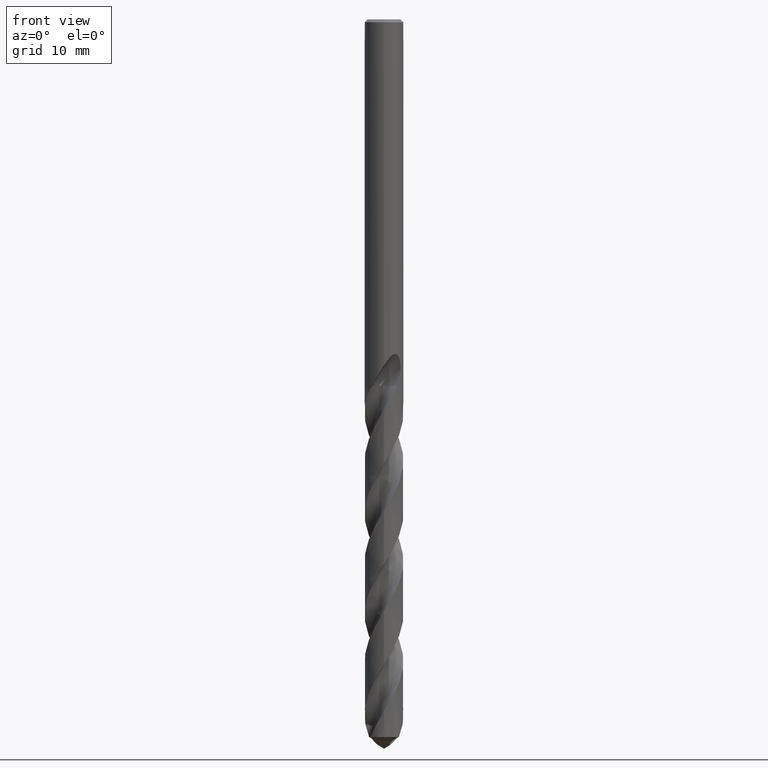
[diagram: clean part render]
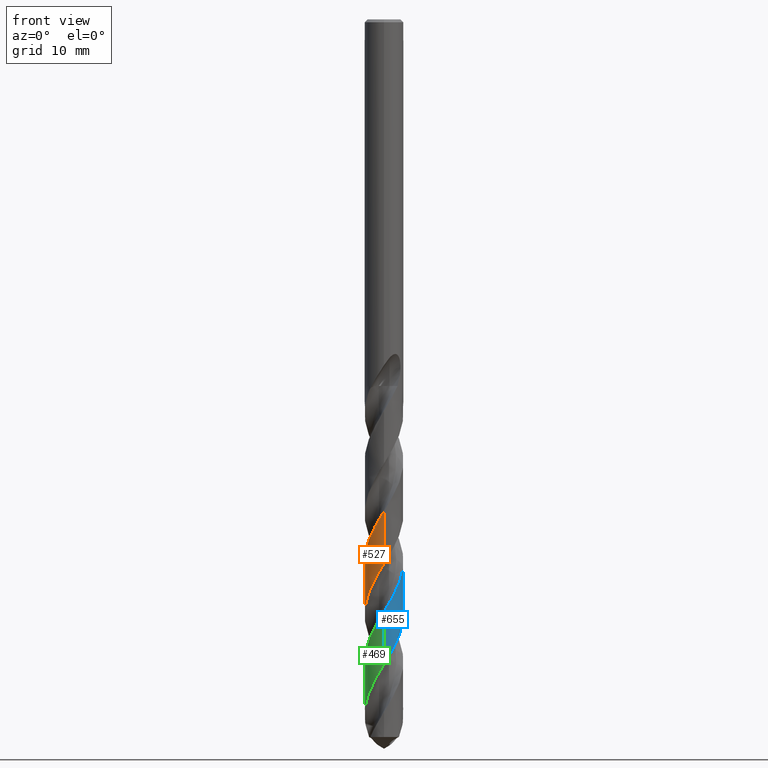
[diagram: same view with three faces highlighted in distinct colors, each labeled with its STEP entity id]
A machine part, front view with three faces highlighted in distinct colors.
Their STEP definitions:

[orange] entity #527 — the highlighted conical surface has half-angle 0 deg.
#299=EDGE_CURVE('',#701,#699,#799,.T.);
#381=EDGE_CURVE('',#651,#435,#891,.T.);
#435=VERTEX_POINT('',#952);
#463=EDGE_CURVE('',#435,#701,#980,.T.);
#527=ADVANCED_FACE('',(#1051),#1052,.T.);
#583=EDGE_CURVE('',#699,#651,#1115,.T.);
#651=VERTEX_POINT('',#1189);
#699=VERTEX_POINT('',#1239);
#701=VERTEX_POINT('',#1241);
#799=B_SPLINE_CURVE_WITH_KNOTS('',3,(#1475,#1476,#1477,#1478,#1479,#1480,#1481,#1482,#1483,#1484,#1485,#1486,#1487,#1488,#1489,#1490,#1491,#1492,#1493,#1494,#1495,#1496,#1497,#1498,#1499,#1500,#1501,#1502,#1503,#1504,#1505,#1506,#1507,#1508,#1509,#1510,#1511,#1512,#1513,#1514,#1515,#1516,#1517,#1518,#1519,#1520,#1521,#1522,#1523,#1524,#1525,#1526,#1527,#1528,#1529,#1530,#1531,#1532,#1533,#1534,#1535,#1536,#1537,#1538,#1539,#1540,#1541,#1542,#1543,#1544,#1545,#1546,#1547,#1548,#1549,#1550,#1551,#1552,#1553,#1554,#1555,#1556,#1557,#1558,#1559,#1560,#1561,#1562,#1563,#1564,#1565,#1566,#1567,#1568,#1569,#1570,#1571,#1572,#1573,#1574,#1575,#1576,#1577,#1578,#1579,#1580,#1581,#1582,#1583,#1584,#1585,#1586,#1587,#1588,#1589,#1590,#1591,#1592,#1593,#1594,#1595,#1596,#1597,#1598,#1599,#1600,#1601,#1602,#1603,#1604,#1605,#1606,#1607,#1608,#1609,#1610,#1611,#1612,#1613,#1614,#1615,#1616,#1617,#1618,#1619,#1620,#1621,#1622,#1623,#1624,#1625,#1626,#1627,#1628,#1629,#1630,#1631,#1632,#1633,#1634,#1635,#1636,#1637,#1638,#1639,#1640,#1641,#1642,#1643,#1644,#1645,#1646,#1647,#1648),.UNSPECIFIED.,.F.,.F.,(4,2,2,2,2,2,2,2,2,2,2,2,2,2,2,2,2,2,2,2,2,2,2,2,2,2,2,2,2,2,2,2,2,2,2,2,2,2,2,2,2,2,2,2,2,2,2,2,2,2,2,2,2,2,2,2,2,2,2,2,2,2,2,2,2,2,2,2,2,2,2,2,2,2,2,2,2,2,2,2,2,2,2,2,2,2,4),(0.0,0.10324201492185,0.143162014822113,0.165246334766473,0.179587706489972,0.190170327259584,0.197981629445189,0.203754393021112,0.20802632582969,0.211176849546779,0.213497862862162,0.215211222921959,0.216477929992509,0.443872005220367,0.499196434962649,0.529789794190778,0.555639821271776,0.586475484903963,0.642949156799228,0.716459952345308,1.01709583298375,1.18889651264387,1.33721944955247,1.48647960079191,2.17475847723128,2.5083856989308,2.9778841605627,3.69869521697535,4.15438633684289,4.78738466345146,5.11867138405736,5.4726349872234,6.63738341271215,6.7036099436711,7.7033369828835,8.51823316420899,9.20950523416354,9.50486771752993,10.1577989549978,10.4883587037671,10.8074932939098,11.4281248425274,11.7592845104653,12.1120320336756,13.2798828503166,13.3462401235011,14.3485829110055,15.1498209425592,15.8030570257783,16.120102162128,16.7424675639511,17.0927645034569,17.4305080852107,18.0334593472246,18.3840883972708,18.7447887024758,19.9047496364828,19.9719513257378,20.9596082822213,21.8058741559047,22.4972764033458,22.7857452521471,23.450756598587,24.1443508532453,24.7933319639576,25.4647516929889,26.1042225055537,26.7974863614254,27.447662533188,28.1126525833699,28.7443285139187,29.4388920805537,30.0720924319341,30.7663477954125,31.4027201193643,32.0963144681338,32.7402301755031,33.3965000611225,34.0676522633018,34.72363286659,35.3956130792043,36.05132357505,36.7308346986914,37.8079135778081,38.218575510019,38.9243588925512,41.1130755417579),.UNSPECIFIED.);
#891=B_SPLINE_CURVE_WITH_KNOTS('',3,(#3453,#3454,#3455,#3456,#3457,#3458,#3459,#3460,#3461,#3462,#3463,#3464,#3465,#3466,#3467,#3468,#3469,#3470,#3471,#3472,#3473,#3474,#3475,#3476,#3477,#3478,#3479,#3480,#3481,#3482,#3483,#3484,#3485,#3486,#3487,#3488,#3489,#3490,#3491,#3492,#3493,#3494,#3495,#3496,#3497,#3498,#3499,#3500,#3501,#3502,#3503,#3504,#3505,#3506,#3507,#3508,#3509,#3510,#3511,#3512,#3513,#3514,#3515,#3516,#3517,#3518,#3519,#3520,#3521,#3522,#3523,#3524,#3525,#3526,#3527,#3528,#3529,#3530,#3531,#3532,#3533,#3534,#3535,#3536,#3537,#3538,#3539,#3540,#3541,#3542,#3543,#3544,#3545,#3546,#3547,#3548,#3549,#3550,#3551,#3552,#3553,#3554,#3555,#3556,#3557,#3558,#3559,#3560,#3561,#3562,#3563,#3564,#3565,#3566,#3567,#3568,#3569,#3570,#3571,#3572,#3573,#3574,#3575,#3576,#3577,#3578,#3579,#3580,#3581,#3582,#3583,#3584,#3585,#3586,#3587,#3588,#3589,#3590,#3591,#3592,#3593,#3594,#3595,#3596,#3597,#3598,#3599,#3600,#3601,#3602),.UNSPECIFIED.,.F.,.F.,(4,2,2,2,2,2,2,2,2,2,2,2,2,2,2,2,2,2,2,2,2,2,2,2,2,2,2,2,2,2,2,2,2,2,2,2,2,2,2,2,2,2,2,2,2,2,2,2,2,2,2,2,2,2,2,2,2,2,2,2,2,2,2,2,2,2,2,2,2,2,2,2,2,2,4),(0.0,1.24032553367717,1.48286990308435,2.52081263988143,3.03416551151751,3.7067150771978,4.37725410139759,5.04963319374877,5.72220382598896,6.39421809957316,7.0685272201784,7.71075144711009,8.38863586460276,8.96143486317903,9.30309674062927,9.85797483069164,10.5321031199709,11.2044464998229,11.8781582223579,12.5524224952547,13.2255487581604,13.9016356530227,14.5399740434817,15.2198484206729,16.3337343276656,16.418735931333,17.12678036967,17.4689965583306,18.0795132859178,18.7906737461406,19.4670603694128,20.1789444173331,20.8268841922226,21.5027041041389,21.6718335157197,22.1858097850656,22.8606464767517,23.5332968584232,24.2077081036338,24.8822942773219,25.5563707707468,26.2327958211727,26.8787106916516,27.558558938174,28.1358328581958,28.4785198207013,29.0302340404093,29.7063604835993,30.3807837475729,31.0565031843787,31.7328482195114,32.4069922693239,33.0852376499847,33.7237277964735,34.4058359127364,35.5198399760516,35.6035217842308,36.3178193856403,36.6614516566689,37.2766530049141,37.8674163796059,38.135559224295,38.6417295707758,39.5059597669778,39.9620863886518,40.3068479673806,41.3785984691532,41.7771278663897,42.3469178256904,42.5898874144054,42.7951334378945,43.0087672956323,43.327740777938,44.2267512811181,45.9238746924032),.UNSPECIFIED.);
#952=CARTESIAN_POINT('',(7.88975420349134E-016,-1.99995072094949,-56.0093897424403));
#980=LINE('',#4881,#4882);
#1051=FACE_OUTER_BOUND('',#5908,.T.);
#1052=CONICAL_SURFACE('',#5909,1.99995,2.77021518558259E-006);
#1115=LINE('',#6245,#6246);
#1189=CARTESIAN_POINT('',(-6.00625741301625E-015,1.99997933514574,-66.3386220658795));
#1239=CARTESIAN_POINT('',(2.98655000969136E-015,1.99996425693149,-60.8956462548979));
#1241=CARTESIAN_POINT('',(4.45344943705878E-012,-1.99993564318216,-50.5665752543445));
#1475=CARTESIAN_POINT('',(-1.39008397358236,1.43779922513228,-37.705));
#1476=CARTESIAN_POINT('',(-1.37786387304508,1.4496139009197,-37.7349233406765));
#1477=CARTESIAN_POINT('',(-1.36544726101673,1.46131775669886,-37.7648875674481));
#1478=CARTESIAN_POINT('',(-1.34790380961554,1.47743041328215,-37.8063976777762));
#1479=CARTESIAN_POINT('',(-1.34298074532742,1.4819070765542,-37.8179595516369));
#1480=CARTESIAN_POINT('',(-1.33527584457405,1.48884303028525,-37.8359105301383));
#1481=CARTESIAN_POINT('',(-1.33252121573322,1.49130899266656,-37.8423001422807));
#1482=CARTESIAN_POINT('',(-1.32795874908968,1.49537053870721,-37.8528354250453));
#1483=CARTESIAN_POINT('',(-1.32615789369841,1.49696786794885,-37.8569816537881));
#1484=CARTESIAN_POINT('',(-1.32301970911608,1.49974125789572,-37.8641854415951));
#1485=CARTESIAN_POINT('',(-1.32168472246254,1.50091789560266,-37.8672432335046));
#1486=CARTESIAN_POINT('',(-1.31935972465901,1.50296159865576,-37.8725568785046));
#1487=CARTESIAN_POINT('',(-1.31837097566751,1.50382899612402,-37.8748129234976));
#1488=CARTESIAN_POINT('',(-1.31664899025375,1.50533663109153,-37.8787355608754));
#1489=CARTESIAN_POINT('',(-1.31591643365281,1.50597705699039,-37.8804022842548));
#1490=CARTESIAN_POINT('',(-1.31464039365942,1.50709097115708,-37.883302016494));
#1491=CARTESIAN_POINT('',(-1.31409727777544,1.50756456540231,-37.8845351075975));
#1492=CARTESIAN_POINT('',(-1.31315286226536,1.50838719212944,-37.8866773746049));
#1493=CARTESIAN_POINT('',(-1.3127517643496,1.50873628464232,-37.8875866005978));
#1494=CARTESIAN_POINT('',(-1.31205476421543,1.50934242478062,-37.8891655369258));
#1495=CARTESIAN_POINT('',(-1.31175897147532,1.50959950577166,-37.8898352764804));
#1496=CARTESIAN_POINT('',(-1.31124460306793,1.51004629100548,-37.8909993464301));
#1497=CARTESIAN_POINT('',(-1.31102608636137,1.51023601349434,-37.8914936932862));
#1498=CARTESIAN_POINT('',(-1.31064589611697,1.51056596086123,-37.8923534790761));
#1499=CARTESIAN_POINT('',(-1.31048425448797,1.51070619576637,-37.892718927296));
#1500=CARTESIAN_POINT('',(-1.28129847125122,1.53601860054671,-37.9586860025736));
#1501=CARTESIAN_POINT('',(-1.25167303417711,1.56028381316677,-38.0224431824875));
#1502=CARTESIAN_POINT('',(-1.21267629814028,1.59031866220887,-38.102735449506));
#1503=CARTESIAN_POINT('',(-1.20498416929351,1.59615528855513,-38.1184117578327));
#1504=CARTESIAN_POINT('',(-1.19292946554544,1.60516445319335,-38.1427526747499));
#1505=CARTESIAN_POINT('',(-1.18861889906511,1.60835910120036,-38.1514124956294));
#1506=CARTESIAN_POINT('',(-1.18063031945476,1.61422980149509,-38.1673858125703));
#1507=CARTESIAN_POINT('',(-1.17695932650643,1.61690837941958,-38.1746969346148));
#1508=CARTESIAN_POINT('',(-1.16888092800938,1.622760693873,-38.1907265650816));
#1509=CARTESIAN_POINT('',(-1.1644700026001,1.6259288751538,-38.1994406655626));
#1510=CARTESIAN_POINT('',(-1.1519322546603,1.63485687875078,-38.2241122048704));
#1511=CARTESIAN_POINT('',(-1.14377388161465,1.64057511716476,-38.2400506801315));
#1512=CARTESIAN_POINT('',(-1.12488308904505,1.65360602332469,-38.2767503740918));
#1513=CARTESIAN_POINT('',(-1.11401016462855,1.66095291812436,-38.297716229194));
#1514=CARTESIAN_POINT('',(-1.05758689687318,1.69825548397748,-38.4063795584286));
#1515=CARTESIAN_POINT('',(-1.01135940535658,1.72615981090844,-38.4944612573147));
#1516=CARTESIAN_POINT('',(-0.937651301988944,1.76673612872642,-38.6325833051741));
#1517=CARTESIAN_POINT('',(-0.910548755920801,1.78085451332534,-38.6829007721116));
#1518=CARTESIAN_POINT('',(-0.859540047973003,1.80596144119329,-38.7766066496938));
#1519=CARTESIAN_POINT('',(-0.835676122482891,1.81712738459998,-38.8200526399864));
#1520=CARTESIAN_POINT('',(-0.787366671320648,1.83857825587027,-38.9071631414255));
#1521=CARTESIAN_POINT('',(-0.762913051376098,1.84885956149855,-38.9508576800758));
#1522=CARTESIAN_POINT('',(-0.624531805056522,1.90382487289959,-39.1960965368136));
#1523=CARTESIAN_POINT('',(-0.506800012628536,1.9385060806723,-39.3969235923436));
#1524=CARTESIAN_POINT('',(-0.328189437646002,1.97368843417001,-39.6958828156998));
#1525=CARTESIAN_POINT('',(-0.269404764678592,1.98256751487425,-39.7934153197359));
#1526=CARTESIAN_POINT('',(-0.127180398616313,1.99760882006173,-40.0284005837105));
#1527=CARTESIAN_POINT('',(-0.0436280604535424,2.0011731752127,-40.1657284033345));
#1528=CARTESIAN_POINT('',(0.167993907780861,1.99695729966722,-40.5141557931301));
#1529=CARTESIAN_POINT('',(0.295696256047139,1.98208824587813,-40.7247244808009));
#1530=CARTESIAN_POINT('',(0.500507626705972,1.93796661307778,-41.0689370024443));
#1531=CARTESIAN_POINT('',(0.578701564725732,1.91606979667384,-41.2019739491942));
#1532=CARTESIAN_POINT('',(0.761800592141357,1.85256556406208,-41.5205624667447));
#1533=CARTESIAN_POINT('',(0.864958772644184,1.80670701174129,-41.7056687951822));
#1534=CARTESIAN_POINT('',(1.01538408180771,1.72398409813625,-41.9878643715856));
#1535=CARTESIAN_POINT('',(1.06579077129045,1.69328666446702,-42.0847463363836));
#1536=CARTESIAN_POINT('',(1.16711339278926,1.62526032572608,-42.2852540504546));
#1537=CARTESIAN_POINT('',(1.2177401274994,1.58768068127266,-42.3887067742956));
#1538=CARTESIAN_POINT('',(1.42693854450244,1.41650256130473,-42.8332403881292));
#1539=CARTESIAN_POINT('',(1.56607599142473,1.26099668774288,-43.1723364632782));
#1540=CARTESIAN_POINT('',(1.68523787578751,1.07692947994238,-43.5325685334575));
#1541=CARTESIAN_POINT('',(1.69155982751033,1.06697203593564,-43.5519461432565));
#1542=CARTESIAN_POINT('',(1.79189577484051,0.905803981786329,-43.8639515426309));
#1543=CARTESIAN_POINT('',(1.86541961436463,0.7427031109946,-44.1559091944788));
#1544=CARTESIAN_POINT('',(1.95789511297429,0.432901795596037,-44.6871080488215));
#1545=CARTESIAN_POINT('',(1.9841334718793,0.289723172291325,-44.9250273020109));
#1546=CARTESIAN_POINT('',(2.00357975877757,0.0222985738471517,-45.3660734006475));
#1547=CARTESIAN_POINT('',(2.00116130917599,-0.101054495610372,-45.5679529158143));
#1548=CARTESIAN_POINT('',(1.98151953603845,-0.275754338001979,-45.8567589686675));
#1549=CARTESIAN_POINT('',(1.97358024278006,-0.327777251541968,-45.943165622514));
#1550=CARTESIAN_POINT('',(1.94154966456995,-0.493552452223244,-46.2208517704645));
#1551=CARTESIAN_POINT('',(1.90957870873251,-0.605585242592824,-46.411855208356));
#1552=CARTESIAN_POINT('',(1.84701357557033,-0.76922551108967,-46.6998167221791));
#1553=CARTESIAN_POINT('',(1.82356210852651,-0.823281257354248,-46.7965301263068));
#1554=CARTESIAN_POINT('',(1.77283676591111,-0.92735482939844,-46.9867289486411));
#1555=CARTESIAN_POINT('',(1.74576165127155,-0.977368977731826,-47.0800715798074));
#1556=CARTESIAN_POINT('',(1.65989288516889,-1.1210165499942,-47.3552905168721));
#1557=CARTESIAN_POINT('',(1.59540632658741,-1.21103715680785,-47.5369134020661));
#1558=CARTESIAN_POINT('',(1.48559471050045,-1.34022408307677,-47.8156414981019));
#1559=CARTESIAN_POINT('',(1.44540874021096,-1.38347033226466,-47.9125494923706));
#1560=CARTESIAN_POINT('',(1.3585674982448,-1.46900038110453,-48.1127927342108));
#1561=CARTESIAN_POINT('',(1.31173833803636,-1.51096220291819,-48.2159489522609));
#1562=CARTESIAN_POINT('',(1.10173858821168,-1.68201192602339,-48.6613162435371));
#1563=CARTESIAN_POINT('',(0.920861909898059,-1.7874759346089,-49.0015392162535));
#1564=CARTESIAN_POINT('',(0.715918950229747,-1.86743920748291,-49.3629632442328));
#1565=CARTESIAN_POINT('',(0.704864418065186,-1.87163977731178,-49.3823926271731));
#1566=CARTESIAN_POINT('',(0.526234991225429,-1.93770963303504,-49.6954115952818));
#1567=CARTESIAN_POINT('',(0.351085326310735,-1.97697017891419,-49.9883070789151));
#1568=CARTESIAN_POINT('',(0.0307341427413471,-2.00479523761476,-50.5166155755239));
#1569=CARTESIAN_POINT('',(-0.112440367441342,-2.0018676148061,-50.7507179742068));
#1570=CARTESIAN_POINT('',(-0.369439535395569,-1.96896035625224,-51.1769057806803));
#1571=CARTESIAN_POINT('',(-0.483404957756013,-1.94412884807088,-51.3678687631447));
#1572=CARTESIAN_POINT('',(-0.648584063562885,-1.89269355606967,-51.6520754399242));
#1573=CARTESIAN_POINT('',(-0.701797590779599,-1.87361335710438,-51.7448597826804));
#1574=CARTESIAN_POINT('',(-0.856826312517588,-1.81049843908254,-52.0201258583545));
#1575=CARTESIAN_POINT('',(-0.955898666274608,-1.76020562649164,-52.2023532826556));
#1576=CARTESIAN_POINT('',(-1.10343378835843,-1.66916028498874,-52.4873488020459));
#1577=CARTESIAN_POINT('',(-1.15501515172527,-1.63389320977873,-52.5899037331003));
#1578=CARTESIAN_POINT('',(-1.25294400101257,-1.55997625879999,-52.7914664913515));
#1579=CARTESIAN_POINT('',(-1.2993324959125,-1.52155389081296,-52.8903009922614));
#1580=CARTESIAN_POINT('',(-1.42348572294609,-1.40890241815112,-53.1659754556126));
#1581=CARTESIAN_POINT('',(-1.49712626645427,-1.33039003679015,-53.3425659545515));
#1582=CARTESIAN_POINT('',(-1.6030544070606,-1.19745534142138,-53.6220146147277));
#1583=CARTESIAN_POINT('',(-1.63970115435033,-1.14676417202475,-53.7246851042347));
#1584=CARTESIAN_POINT('',(-1.70912409235636,-1.04058298685604,-53.9330999312367));
#1585=CARTESIAN_POINT('',(-1.74169597430477,-0.985093732493738,-54.038647323802));
#1586=CARTESIAN_POINT('',(-1.86748566483352,-0.745003797288777,-54.4843331092814));
#1587=CARTESIAN_POINT('',(-1.93450191363072,-0.547996614045157,-54.8225335733391));
#1588=CARTESIAN_POINT('',(-1.97217257745922,-0.332374376222638,-55.1821385754193));
#1589=CARTESIAN_POINT('',(-1.97412896170817,-0.320550197263934,-55.2018278560728));
#1590=CARTESIAN_POINT('',(-2.00316965306871,-0.13467231151171,-55.5110048830983));
#1591=CARTESIAN_POINT('',(-2.00725312772504,0.0422540734419936,-55.7998732609263));
#1592=CARTESIAN_POINT('',(-1.97168449909116,0.36750912566432,-56.3374570687439));
#1593=CARTESIAN_POINT('',(-1.93833318570297,0.515202844223023,-56.5848076355763));
#1594=CARTESIAN_POINT('',(-1.84819023673662,0.774079747102755,-57.0356894418433));
#1595=CARTESIAN_POINT('',(-1.79696707119959,0.88653521705074,-57.2378701781469));
#1596=CARTESIAN_POINT('',(-1.71010775018373,1.03826797306663,-57.5250882557012));
#1597=CARTESIAN_POINT('',(-1.68283367755307,1.08191335082552,-57.6096027704806));
#1598=CARTESIAN_POINT('',(-1.58725826655988,1.2224941931783,-57.8891871297915));
#1599=CARTESIAN_POINT('',(-1.5119909191481,1.31445113171481,-58.083966829659));
#1600=CARTESIAN_POINT('',(-1.34243612906639,1.48761677360366,-58.4822912170874));
#1601=CARTESIAN_POINT('',(-1.24788597819407,1.56777094264352,-58.6849068806706));
#1602=CARTESIAN_POINT('',(-1.05175679139247,1.70500238556083,-59.0786301507127));
#1603=CARTESIAN_POINT('',(-0.951340521240434,1.76300754343684,-59.2687236718065));
#1604=CARTESIAN_POINT('',(-0.737912380318811,1.86270690288486,-59.6558752610359));
#1605=CARTESIAN_POINT('',(-0.625085021686817,1.90353554267095,-59.8520643174976));
#1606=CARTESIAN_POINT('',(-0.399044458724678,1.96306265776557,-60.2365274704356));
#1607=CARTESIAN_POINT('',(-0.286461843708823,1.98262667443902,-60.4238649638815));
#1608=CARTESIAN_POINT('',(-0.0495683474360777,2.00317207748276,-60.8146708728214));
#1609=CARTESIAN_POINT('',(0.0743460096448547,2.00240219928664,-61.0172259005106));
#1610=CARTESIAN_POINT('',(0.312746128504393,1.97876106689919,-61.4112711274125));
#1611=CARTESIAN_POINT('',(0.426948933582154,1.95730405712684,-61.6017455317668));
#1612=CARTESIAN_POINT('',(0.652951957834556,1.89409685832284,-61.9874286723612));
#1613=CARTESIAN_POINT('',(0.764118433311016,1.85204199443932,-62.1817803403029));
#1614=CARTESIAN_POINT('',(0.972295769936145,1.75134454670073,-62.5621378716033));
#1615=CARTESIAN_POINT('',(1.06941492675154,1.69379301142289,-62.7472353590762));
#1616=CARTESIAN_POINT('',(1.26210037915087,1.55638869324165,-63.136209113561));
#1617=CARTESIAN_POINT('',(1.3560744118803,1.47522640832075,-63.3391702564428));
#1618=CARTESIAN_POINT('',(1.5201823696101,1.30448792318247,-63.728683350026));
#1619=CARTESIAN_POINT('',(1.59143063572943,1.21655588973442,-63.9142412368848));
#1620=CARTESIAN_POINT('',(1.72445775672134,1.02053450323901,-64.3036040603916));
#1621=CARTESIAN_POINT('',(1.78433354133131,0.911803992226251,-64.5064940747314));
#1622=CARTESIAN_POINT('',(1.87906895737971,0.694180299445012,-64.8968806648298));
#1623=CARTESIAN_POINT('',(1.91544718394592,0.586400503519495,-65.0833792130355));
#1624=CARTESIAN_POINT('',(1.97195319495255,0.355854754080867,-65.473509803763));
#1625=CARTESIAN_POINT('',(1.99018709588796,0.233183084785858,-65.6762277636836));
#1626=CARTESIAN_POINT('',(2.003268165375,-0.00505523600456972,-66.0686677558131));
#1627=CARTESIAN_POINT('',(1.99967470334137,-0.120117201275481,-66.2573819420516));
#1628=CARTESIAN_POINT('',(1.97249152267928,-0.350599860115998,-66.6388055254987));
#1629=CARTESIAN_POINT('',(1.94858124329638,-0.465471159741864,-66.8306780287214));
#1630=CARTESIAN_POINT('',(1.88018865371477,-0.692210977697883,-67.2201842121705));
#1631=CARTESIAN_POINT('',(1.83537174507334,-0.803551195855709,-67.4168885992196));
#1632=CARTESIAN_POINT('',(1.72754826746275,-1.01450658774287,-67.8062538887885));
#1633=CARTESIAN_POINT('',(1.66521491738914,-1.11386479877846,-67.9980610344815));
#1634=CARTESIAN_POINT('',(1.52219530724557,-1.30278076099942,-68.387764060769));
#1635=CARTESIAN_POINT('',(1.4413502139252,-1.3917056750104,-68.5847288025418));
#1636=CARTESIAN_POINT('',(1.26678844439921,-1.5520624877662,-68.9742951385722));
#1637=CARTESIAN_POINT('',(1.17381724085589,-1.62351249013276,-69.1660430901329));
#1638=CARTESIAN_POINT('',(0.97291011162129,-1.75159981624968,-69.557915146998));
#1639=CARTESIAN_POINT('',(0.864915719440639,-1.80737280257458,-69.7570952492413));
#1640=CARTESIAN_POINT('',(0.57432183231627,-1.92538310098191,-70.272555237127));
#1641=CARTESIAN_POINT('',(0.386658934708911,-1.9716525813025,-70.5870118599603));
#1642=CARTESIAN_POINT('',(0.122398312685478,-1.99758854349863,-71.0236503644088));
#1643=CARTESIAN_POINT('',(0.0490910539789719,-2.00073492018698,-71.1440559632574));
#1644=CARTESIAN_POINT('',(-0.15029493022676,-1.99831817956296,-71.471635662875));
#1645=CARTESIAN_POINT('',(-0.275849436199579,-1.98487801268362,-71.6782290046135));
#1646=CARTESIAN_POINT('',(-0.781889281737279,-1.88178954438411,-72.5278705966519));
#1647=CARTESIAN_POINT('',(-1.1336344524178,-1.69341154462608,-73.1562032779538));
#1648=CARTESIAN_POINT('',(-1.41070437765753,-1.41771406103554,-73.7982787619449));
#3453=CARTESIAN_POINT('',(1.53262371792478,-1.28493756239532,-73.7982787619449));
#3454=CARTESIAN_POINT('',(1.66988290302873,-1.12121860058722,-73.4443152377203));
#3455=CARTESIAN_POINT('',(1.78017755426661,-0.936419367713748,-73.0976128081715));
#3456=CARTESIAN_POINT('',(1.87461281617409,-0.698262375092074,-72.6755401035056));
#3457=CARTESIAN_POINT('',(1.88882639474976,-0.658850319669311,-72.6063935207929));
#3458=CARTESIAN_POINT('',(1.95740806062995,-0.448113983376986,-72.2415819856214));
#3459=CARTESIAN_POINT('',(1.98971257295234,-0.27066228339422,-71.9496929401447));
#3460=CARTESIAN_POINT('',(2.00196227885518,-0.00260362107316001,-71.5078805770982));
#3461=CARTESIAN_POINT('',(2.00010904015178,0.086367432453378,-71.361006431475));
#3462=CARTESIAN_POINT('',(1.98211279739531,0.291197953301194,-71.0230432676329));
#3463=CARTESIAN_POINT('',(1.96176581000794,0.406268886913643,-70.8324900637739));
#3464=CARTESIAN_POINT('',(1.90130867264583,0.631283873227344,-70.4498761688807));
#3465=CARTESIAN_POINT('',(1.86143019655305,0.740635690236047,-70.2580113361568));
#3466=CARTESIAN_POINT('',(1.76299524529269,0.951515285116294,-69.8754425132669));
#3467=CARTESIAN_POINT('',(1.70456362605712,1.05262267814571,-69.6849954073066));
#3468=CARTESIAN_POINT('',(1.57066590597331,1.24360917252461,-69.3020253857403));
#3469=CARTESIAN_POINT('',(1.49557789778711,1.33295192972654,-69.1096743147306));
#3470=CARTESIAN_POINT('',(1.33080528954984,1.49747944874147,-68.7268049176578));
#3471=CARTESIAN_POINT('',(1.24139701258355,1.57240169897121,-68.5365531899364));
#3472=CARTESIAN_POINT('',(1.0501099664329,1.70612757731308,-68.1534126862162));
#3473=CARTESIAN_POINT('',(0.948755339476359,1.76448634138209,-67.9606890601941));
#3474=CARTESIAN_POINT('',(0.742175662111705,1.86049864134361,-67.586025011242));
#3475=CARTESIAN_POINT('',(0.637606706031243,1.89888731869717,-67.4042273994246));
#3476=CARTESIAN_POINT('',(0.417028272085897,1.95954390744103,-67.0288260647397));
#3477=CARTESIAN_POINT('',(0.301398060845497,1.98060643377576,-66.8353027387219));
#3478=CARTESIAN_POINT('',(0.086216824238818,2.00057026407779,-66.4796673691002));
#3479=CARTESIAN_POINT('',(-0.0129864177432981,2.00239631550263,-66.3174903776577));
#3480=CARTESIAN_POINT('',(-0.171123570206324,1.99352270849433,-66.057728912661));
#3481=CARTESIAN_POINT('',(-0.229965642114338,1.98759033363679,-65.9607863785238));
#3482=CARTESIAN_POINT('',(-0.383285071724889,1.96524767045912,-65.70590711008));
#3483=CARTESIAN_POINT('',(-0.477049602210062,1.9446203424049,-65.5474817155914));
#3484=CARTESIAN_POINT('',(-0.680891638569698,1.88411630302863,-65.1980035395806));
#3485=CARTESIAN_POINT('',(-0.789605062347542,1.84120689841114,-65.0074110063221));
#3486=CARTESIAN_POINT('',(-0.99809348599762,1.73702393182589,-64.6246702385176));
#3487=CARTESIAN_POINT('',(-1.09733159941906,1.67608909002789,-64.4327081016625));
#3488=CARTESIAN_POINT('',(-1.28432946171191,1.53751745942821,-64.0500830009828));
#3489=CARTESIAN_POINT('',(-1.37171638883503,1.46009452076128,-63.8596784548031));
#3490=CARTESIAN_POINT('',(-1.53214102988155,1.29075318558134,-63.4766945324646));
#3491=CARTESIAN_POINT('',(-1.60471614498909,1.19930916915445,-63.284286275939));
#3492=CARTESIAN_POINT('',(-1.73300543103652,1.00503658929579,-62.9014653345413));
#3493=CARTESIAN_POINT('',(-1.78853873012093,0.902531548694432,-62.7113183844582));
#3494=CARTESIAN_POINT('',(-1.88139047560528,0.68841784979573,-62.3282113433923));
#3495=CARTESIAN_POINT('',(-1.91835746261711,0.577406702118769,-62.1354150595403));
#3496=CARTESIAN_POINT('',(-1.97098798269197,0.356675344854541,-61.7621853178357));
#3497=CARTESIAN_POINT('',(-1.98766305011074,0.247473488249651,-61.581876374717));
#3498=CARTESIAN_POINT('',(-2.00331658122829,0.0200772677222323,-61.2078593689587));
#3499=CARTESIAN_POINT('',(-2.00102034984808,-0.0975198522562657,-61.0142238782541));
#3500=CARTESIAN_POINT('',(-1.96792793479947,-0.404942612419577,-60.5053260665679));
#3501=CARTESIAN_POINT('',(-1.9200091921307,-0.591687467100875,-60.1939704752225));
#3502=CARTESIAN_POINT('',(-1.84079881073029,-0.781996689911969,-59.8537020576903));
#3503=CARTESIAN_POINT('',(-1.83504008148703,-0.795416575014489,-59.8295746594754));
#3504=CARTESIAN_POINT('',(-1.77979104658039,-0.920360571958409,-59.6041332531483));
#3505=CARTESIAN_POINT('',(-1.7202656027967,-1.02739164783888,-59.404137459039));
#3506=CARTESIAN_POINT('',(-1.61772990542723,-1.17740936359233,-59.1061490967326));
#3507=CARTESIAN_POINT('',(-1.58219489709098,-1.22474025057796,-59.0091694364718));
#3508=CARTESIAN_POINT('',(-1.47767398259061,-1.35182493234665,-58.7386762607305));
#3509=CARTESIAN_POINT('',(-1.40442002708068,-1.42778144848367,-58.5645984637855));
#3510=CARTESIAN_POINT('',(-1.23343268488182,-1.57910262977159,-58.1893376952149));
#3511=CARTESIAN_POINT('',(-1.13412378488352,-1.65187340006805,-57.9886986712838));
#3512=CARTESIAN_POINT('',(-0.928534925364801,-1.77519031203564,-57.5948303762937));
#3513=CARTESIAN_POINT('',(-0.823344846807389,-1.82635557263029,-57.4019887540028));
#3514=CARTESIAN_POINT('',(-0.599332774581791,-1.91199841337487,-57.007912179958));
#3515=CARTESIAN_POINT('',(-0.48067585850889,-1.94521987143683,-56.8071130202161));
#3516=CARTESIAN_POINT('',(-0.249640647125265,-1.98746345255361,-56.4211565879574));
#3517=CARTESIAN_POINT('',(-0.138167968469237,-1.99830887542531,-56.2364571808398));
#3518=CARTESIAN_POINT('',(0.0904431098975169,-2.00131095741142,-55.860731246843));
#3519=CARTESIAN_POINT('',(0.207074886929873,-1.99262412297718,-55.6700124015661));
#3520=CARTESIAN_POINT('',(0.35114088802966,-1.96909885280619,-55.4302550045804));
#3521=CARTESIAN_POINT('',(0.379846909577377,-1.96376249379414,-55.382267343774));
#3522=CARTESIAN_POINT('',(0.495179091397291,-1.93970343942003,-55.1883124049331));
#3523=CARTESIAN_POINT('',(0.580743130939445,-1.91583478841039,-55.0417276978915));
#3524=CARTESIAN_POINT('',(0.774561897521241,-1.84755233214184,-54.7039834922745));
#3525=CARTESIAN_POINT('',(0.880999503876134,-1.79923471665133,-54.5133623761469));
#3526=CARTESIAN_POINT('',(1.08395791678197,-1.68473991508594,-54.1306703605396));
#3527=CARTESIAN_POINT('',(1.17997070660632,-1.61893583822494,-53.9387892539402));
#3528=CARTESIAN_POINT('',(1.35976871148612,-1.47118310343874,-53.5562155622516));
#3529=CARTESIAN_POINT('',(1.44317700513762,-1.38946363585988,-53.3657809832348));
#3530=CARTESIAN_POINT('',(1.59488489059987,-1.21231763978411,-52.982837013019));
#3531=CARTESIAN_POINT('',(1.66275845737645,-1.11739196025998,-52.7905005625434));
#3532=CARTESIAN_POINT('',(1.7811710665495,-0.91691623518243,-52.4076482767296));
#3533=CARTESIAN_POINT('',(1.83152384966926,-0.811697318594665,-52.2173973846075));
#3534=CARTESIAN_POINT('',(1.91352109563628,-0.593177589259298,-51.834247896493));
#3535=CARTESIAN_POINT('',(1.94486373579884,-0.480494091701651,-51.6415151442173));
#3536=CARTESIAN_POINT('',(1.98658178636293,-0.25623750300281,-51.2663536323253));
#3537=CARTESIAN_POINT('',(1.99778441197309,-0.145111780873606,-51.0840770982927));
#3538=CARTESIAN_POINT('',(2.00162447847777,0.0838924370485774,-50.7082223254131));
#3539=CARTESIAN_POINT('',(1.99324242064888,0.20110133524933,-50.5147281215715));
#3540=CARTESIAN_POINT('',(1.95894535467172,0.414921484412407,-50.1583549050747));
#3541=CARTESIAN_POINT('',(1.93587828588203,0.511905014135554,-49.9954169133546));
#3542=CARTESIAN_POINT('',(1.88767570628542,0.663260829728577,-49.7348895129809));
#3543=CARTESIAN_POINT('',(1.86724705308708,0.718753157991359,-49.6379517807061));
#3544=CARTESIAN_POINT('',(1.80767531897489,0.860856240315623,-49.384451207341));
#3545=CARTESIAN_POINT('',(1.76473255033151,0.945781432285371,-49.2274048990895));
#3546=CARTESIAN_POINT('',(1.65593262326853,1.12748012888403,-48.8793073490338));
#3547=CARTESIAN_POINT('',(1.58737337136798,1.22212182241108,-48.6887245979179));
#3548=CARTESIAN_POINT('',(1.43467735683704,1.39820031008087,-48.3059801889534));
#3549=CARTESIAN_POINT('',(1.35100057594379,1.47919878031213,-48.1140042070991));
#3550=CARTESIAN_POINT('',(1.17032908355346,1.62591795233392,-47.7313723913947));
#3551=CARTESIAN_POINT('',(1.07363463244324,1.69133321950132,-47.5409752858489));
#3552=CARTESIAN_POINT('',(0.869757444310244,1.80467235363136,-47.1579876167813));
#3553=CARTESIAN_POINT('',(0.763148567923711,1.85226371670507,-46.9655679869379));
#3554=CARTESIAN_POINT('',(0.543264023205415,1.92822415021492,-46.5830232335276));
#3555=CARTESIAN_POINT('',(0.430354553140729,1.95652935727787,-46.393159515294));
#3556=CARTESIAN_POINT('',(0.200053239638202,1.99332676220215,-46.0103103255452));
#3557=CARTESIAN_POINT('',(0.0833219332999421,2.00159294475586,-45.8174848919295));
#3558=CARTESIAN_POINT('',(-0.143272769010007,1.99780754451005,-45.4447286172832));
#3559=CARTESIAN_POINT('',(-0.252891435562154,1.98691847958552,-45.2649169199783));
#3560=CARTESIAN_POINT('',(-0.476806772557401,1.94580629020466,-44.8913584726865));
#3561=CARTESIAN_POINT('',(-0.590198897959021,1.91444039513073,-44.6976848241756));
#3562=CARTESIAN_POINT('',(-0.879321295725929,1.80640864541084,-44.1896660779415));
#3563=CARTESIAN_POINT('',(-1.04790951613199,1.71406592619787,-43.8791901367071));
#3564=CARTESIAN_POINT('',(-1.21210483924981,1.59080871236935,-43.5403058935986));
#3565=CARTESIAN_POINT('',(-1.22346834026337,1.58208587539551,-43.5166342371421));
#3566=CARTESIAN_POINT('',(-1.33114206259576,1.49757631639545,-43.2907158051563));
#3567=CARTESIAN_POINT('',(-1.42057103329604,1.41307656793304,-43.0897964034413));
#3568=CARTESIAN_POINT('',(-1.54094315720449,1.27618819947576,-42.7908766524863));
#3569=CARTESIAN_POINT('',(-1.57801434854403,1.2300486216152,-42.6939008607366));
#3570=CARTESIAN_POINT('',(-1.67551902849186,1.09703493058777,-42.4228080435601));
#3571=CARTESIAN_POINT('',(-1.73115573091598,1.00694974559821,-42.2481423949371));
#3572=CARTESIAN_POINT('',(-1.8258312600621,0.822382175856831,-41.9071646383919));
#3573=CARTESIAN_POINT('',(-1.8652743740776,0.728521824369656,-41.7408541502439));
#3574=CARTESIAN_POINT('',(-1.9120116337229,0.588205263117977,-41.4981322220785));
#3575=CARTESIAN_POINT('',(-1.92506526257494,0.543955421563075,-41.4223962517503));
#3576=CARTESIAN_POINT('',(-1.95828199385245,0.41513100619968,-41.2034018884628));
#3577=CARTESIAN_POINT('',(-1.97450505007773,0.329497531064191,-41.0596182805579));
#3578=CARTESIAN_POINT('',(-2.00318011284814,0.0951963930748269,-40.6718137189719));
#3579=CARTESIAN_POINT('',(-2.00468943215374,-0.0539761338349697,-40.4295627084442));
#3580=CARTESIAN_POINT('',(-1.98179524538612,-0.279748922427241,-40.055724419339));
#3581=CARTESIAN_POINT('',(-1.96932632106547,-0.357123117531541,-39.9260686960093));
#3582=CARTESIAN_POINT('',(-1.93944222125917,-0.491634366348357,-39.6992061416707));
#3583=CARTESIAN_POINT('',(-1.92398528684143,-0.54904092188549,-39.6016981697498));
#3584=CARTESIAN_POINT('',(-1.84989304097749,-0.782152995153294,-39.2010084599572));
#3585=CARTESIAN_POINT('',(-1.77847647089302,-0.92342718678804,-38.9482615761633));
#3586=CARTESIAN_POINT('',(-1.68869655034483,-1.07244503191324,-38.6587127883185));
#3587=CARTESIAN_POINT('',(-1.66335328806265,-1.11127980681972,-38.5800798005745));
#3588=CARTESIAN_POINT('',(-1.59975323470202,-1.20193315058233,-38.3870769165719));
#3589=CARTESIAN_POINT('',(-1.57152989259099,-1.23702296665411,-38.3037026163934));
#3590=CARTESIAN_POINT('',(-1.55543494319128,-1.25709485608238,-38.2572782976898));
#3591=CARTESIAN_POINT('',(-1.5505201888811,-1.26315312928158,-38.2434661170191));
#3592=CARTESIAN_POINT('',(-1.54125292019543,-1.27443708925322,-38.2180982621688));
#3593=CARTESIAN_POINT('',(-1.53693335202798,-1.27964384288069,-38.2065300424814));
#3594=CARTESIAN_POINT('',(-1.52795647574195,-1.29035078567617,-38.1830134677105));
#3595=CARTESIAN_POINT('',(-1.52329425160187,-1.29585227557268,-38.171073281027));
#3596=CARTESIAN_POINT('',(-1.51145373940354,-1.30966837178752,-38.1414317416673));
#3597=CARTESIAN_POINT('',(-1.50417290966542,-1.31802722106875,-38.1238040635023));
#3598=CARTESIAN_POINT('',(-1.47560972225713,-1.35025563507572,-38.0569341829372));
#3599=CARTESIAN_POINT('',(-1.4530245223366,-1.37460052814139,-38.0086835474176));
#3600=CARTESIAN_POINT('',(-1.38292656042567,-1.4461689804318,-37.8719470271144));
#3601=CARTESIAN_POINT('',(-1.33174044567226,-1.49385536971646,-37.7870563067385));
#3602=CARTESIAN_POINT('',(-1.27440158741468,-1.54126592754024,-37.705));
#4881=CARTESIAN_POINT('',(2.45683122860149E-016,-1.99995,-55.7491393809724));
#4882=VECTOR('',#8170,1.0);
#5908=EDGE_LOOP('',(#8257,#8258,#8259,#8260));
#5909=AXIS2_PLACEMENT_3D('',#8261,#8262,#8263);
#6245=CARTESIAN_POINT('',(-2.44147172605263E-016,1.99995,-55.7491393809724));
#6246=VECTOR('',#8343,1.0);
#8170=DIRECTION('',(-3.39242311771534E-022,2.77021518557905E-006,0.999999999996163));
#8257=ORIENTED_EDGE('',*,*,#583,.T.);
#8258=ORIENTED_EDGE('',*,*,#381,.T.);
#8259=ORIENTED_EDGE('',*,*,#463,.T.);
#8260=ORIENTED_EDGE('',*,*,#299,.T.);
#8261=CARTESIAN_POINT('',(0.0,0.0,-55.7491393809724));
#8262=DIRECTION('',(0.0,-0.0,-1.0));
#8263=DIRECTION('',(0.0,1.0,0.0));
#8343=DIRECTION('',(-3.39242311771534E-022,2.77021518557905E-006,-0.999999999996163));

[blue] entity #655 — the highlighted conical surface has half-angle 0 deg.
#353=VERTEX_POINT('',#861);
#421=EDGE_CURVE('',#541,#437,#938,.T.);
#437=VERTEX_POINT('',#954);
#491=EDGE_CURVE('',#353,#747,#1012,.T.);
#541=VERTEX_POINT('',#1068);
#547=EDGE_CURVE('',#541,#747,#1075,.T.);
#579=EDGE_CURVE('',#353,#437,#1111,.T.);
#655=ADVANCED_FACE('',(#1193),#1194,.T.);
#747=VERTEX_POINT('',#1290);
#861=CARTESIAN_POINT('',(-2.19366825789092E-009,1.99993564318214,-50.5665752471484));
#938=B_SPLINE_CURVE_WITH_KNOTS('',3,(#4437,#4438,#4439,#4440,#4441,#4442,#4443,#4444,#4445,#4446,#4447,#4448,#4449,#4450,#4451,#4452,#4453,#4454,#4455,#4456,#4457,#4458,#4459,#4460,#4461,#4462,#4463,#4464,#4465,#4466,#4467,#4468,#4469,#4470,#4471,#4472,#4473,#4474,#4475,#4476,#4477,#4478,#4479,#4480,#4481,#4482,#4483,#4484,#4485,#4486,#4487,#4488,#4489,#4490,#4491,#4492,#4493,#4494,#4495,#4496,#4497,#4498,#4499,#4500,#4501,#4502,#4503,#4504,#4505,#4506,#4507,#4508,#4509,#4510,#4511,#4512,#4513,#4514,#4515,#4516,#4517,#4518,#4519,#4520,#4521,#4522,#4523,#4524,#4525,#4526,#4527,#4528,#4529,#4530,#4531,#4532,#4533,#4534,#4535,#4536,#4537,#4538,#4539,#4540,#4541,#4542,#4543,#4544,#4545,#4546,#4547,#4548,#4549,#4550,#4551,#4552,#4553,#4554,#4555,#4556,#4557,#4558,#4559,#4560,#4561,#4562,#4563,#4564,#4565,#4566,#4567,#4568,#4569,#4570,#4571,#4572,#4573,#4574,#4575,#4576,#4577,#4578,#4579,#4580,#4581,#4582,#4583,#4584,#4585,#4586,#4587,#4588,#4589,#4590),.UNSPECIFIED.,.F.,.F.,(4,2,2,2,2,2,2,2,2,2,2,2,2,2,2,2,2,2,2,2,2,2,2,2,2,2,2,2,2,2,2,2,2,2,2,2,2,2,2,2,2,2,2,2,2,2,2,2,2,2,2,2,2,2,2,2,2,2,2,2,2,2,2,2,2,2,2,2,2,2,2,2,2,2,2,2,4),(0.0,1.24032553367658,1.48286990301691,2.52081264087684,3.03416551821197,3.70671508389971,4.37725410743775,5.04963320050356,5.72220383189465,6.4003737901738,7.10927777773157,7.8181323907391,8.52318346004922,9.23372237013536,9.86816172978323,10.5423467489422,10.8815407967902,10.9202487577009,11.6191148237687,11.9582378039923,12.5892865601359,13.2587080366521,13.5954922823803,13.6339757824647,14.3272693134265,14.6640012649049,15.2917140321308,15.956398699509,16.2907919260985,16.3741696488591,17.0057839634591,17.3403080393974,17.9800262047859,18.6405448371667,18.8057959462238,19.306067297673,19.965554956693,20.6227756760714,21.2818084755752,21.9409480895873,22.5996297300975,23.260602684544,23.8918656910809,24.5907816662158,25.2077878209879,25.9085561176649,26.6442976286168,27.3048885068284,27.9655777373696,28.6280008085611,29.2679378144779,29.9334140876591,30.514889471551,30.8504927100535,31.3663553845967,32.0286925286017,32.6890297992378,33.3509291716013,34.013185464377,34.674810658622,35.3388098755929,35.9656113593743,36.633379136894,37.7345972654092,37.7859749709192,38.4782272810486,40.0207165348157,40.6471288940166,40.9388104690562,41.1025023262755,41.195596909164,41.2333776767071,41.2695378062387,41.3189884562492,41.4343713854189,41.5982485505299,41.788288954141),.UNSPECIFIED.);
#954=CARTESIAN_POINT('',(-1.89821851818501E-015,1.9999507209495,-56.0093897424403));
#1012=B_SPLINE_CURVE_WITH_KNOTS('',3,(#5073,#5074,#5075,#5076,#5077,#5078,#5079,#5080,#5081,#5082,#5083,#5084,#5085,#5086,#5087,#5088,#5089,#5090,#5091,#5092,#5093,#5094,#5095,#5096,#5097,#5098,#5099,#5100,#5101,#5102,#5103,#5104,#5105,#5106,#5107,#5108,#5109,#5110,#5111,#5112,#5113,#5114,#5115,#5116,#5117,#5118,#5119,#5120,#5121,#5122,#5123,#5124,#5125,#5126,#5127,#5128,#5129,#5130,#5131,#5132,#5133,#5134,#5135,#5136,#5137,#5138,#5139,#5140,#5141,#5142,#5143,#5144,#5145,#5146,#5147,#5148,#5149,#5150,#5151,#5152,#5153,#5154,#5155,#5156,#5157,#5158,#5159,#5160,#5161,#5162,#5163,#5164,#5165,#5166,#5167,#5168,#5169,#5170,#5171,#5172,#5173,#5174,#5175,#5176,#5177,#5178,#5179,#5180,#5181,#5182,#5183,#5184,#5185,#5186,#5187,#5188,#5189,#5190,#5191,#5192,#5193,#5194,#5195,#5196,#5197,#5198,#5199,#5200,#5201,#5202,#5203,#5204,#5205,#5206,#5207,#5208,#5209,#5210,#5211,#5212,#5213,#5214,#5215,#5216,#5217,#5218,#5219,#5220,#5221,#5222,#5223,#5224,#5225,#5226,#5227,#5228,#5229,#5230,#5231,#5232,#5233,#5234,#5235,#5236,#5237,#5238,#5239,#5240,#5241,#5242,#5243,#5244,#5245,#5246,#5247,#5248,#5249,#5250,#5251,#5252,#5253,#5254),.UNSPECIFIED.,.F.,.F.,(4,2,2,2,2,2,2,2,2,2,2,2,2,2,2,2,2,2,2,2,2,2,2,2,2,2,2,2,2,2,2,2,2,2,2,2,2,2,2,2,2,2,2,2,2,2,2,2,2,2,2,2,2,2,2,2,2,2,2,2,2,2,2,2,2,2,2,2,2,2,2,2,2,2,2,2,2,2,2,2,2,2,2,2,2,2,2,2,2,2,4),(0.0,0.103242014952717,0.143162014123173,0.165246336569621,0.179587707751007,0.190170328115785,0.197981630062591,0.203754393433035,0.208026326100163,0.211176849575096,0.213497863286004,0.215211223497984,0.216477930308969,0.443871943252222,0.499196357866209,0.529789708739,0.555639728775984,0.586475384021084,0.64294904054601,0.716459816229802,1.01709561490843,1.18889624777996,1.33721914430403,1.48647925487588,2.17475794722885,2.50838508438569,2.97788342318188,3.69869431982922,4.15438525433489,4.78738339633805,5.13802788667931,5.47972340817034,6.07997742782962,6.43106360413721,6.79233197555612,7.94628727524654,8.08248365856264,9.16397508490607,9.48112720770868,10.103242533501,10.4343895620863,10.7854162159641,11.9554842663724,11.9886119956421,12.9498473469337,13.9068986778172,14.6031995455067,14.6699256937446,15.6665726820229,16.4850627584313,17.1757667926826,17.4705039393287,18.124078743558,18.4733057152474,18.7813091331889,19.4143265364156,19.7641888862437,20.0904935085466,20.7015453229712,21.0324695342341,21.3958003502327,22.5517948907513,22.6194212478342,23.601475810558,24.4670743800055,25.1215690732563,25.4212769544124,26.0656825745919,26.3958458071347,26.7212333550344,27.332742550354,27.6828289457632,28.0314073282876,29.1991322911171,29.2322034171917,30.191849307055,31.1472114073422,31.8423361268929,31.9088827792965,32.9054783203915,33.7170861157819,34.3693372364449,34.6825683904591,35.3050140239968,35.6352545509863,35.9824427866707,37.1558613127287,37.1886674167646,38.1513330405479,38.8764478364483,41.1040860441301),.UNSPECIFIED.);
#1068=CARTESIAN_POINT('',(-1.18673533566595E-014,-1.99997933514574,-66.3386220658796));
#1075=LINE('',#5971,#5972);
#1111=LINE('',#6089,#6090);
#1193=FACE_OUTER_BOUND('',#7258,.T.);
#1194=CONICAL_SURFACE('',#7259,1.99995,2.77021518558259E-006);
#1290=CARTESIAN_POINT('',(-4.32057126264216E-016,-1.9999642569315,-60.8956462548978));
#4437=CARTESIAN_POINT('',(-1.53262371792478,1.28493756239532,-73.7982787619449));
#4438=CARTESIAN_POINT('',(-1.66988290302866,1.12121860058729,-73.4443152377205));
#4439=CARTESIAN_POINT('',(-1.78017755426643,0.93641936771401,-73.097612808172));
#4440=CARTESIAN_POINT('',(-1.87461281616959,0.698262375103469,-72.6755401035258));
#4441=CARTESIAN_POINT('',(-1.88882639474166,0.65885031969179,-72.6063935208323));
#4442=CARTESIAN_POINT('',(-1.95740806067853,0.448113983238073,-72.2415819853789));
#4443=CARTESIAN_POINT('',(-1.98971257301379,0.270662283067244,-71.9496929396074));
#4444=CARTESIAN_POINT('',(-2.00196227890094,0.00260361956815423,-71.5078805746169));
#4445=CARTESIAN_POINT('',(-2.00010904008816,-0.0863674349544658,-71.3610064273596));
#4446=CARTESIAN_POINT('',(-1.98211279688531,-0.291197956778016,-71.0230432618815));
#4447=CARTESIAN_POINT('',(-1.96176580929346,-0.406268890364327,-70.8324900580101));
#4448=CARTESIAN_POINT('',(-1.90130867156413,-0.631283876464247,-70.4498761632733));
#4449=CARTESIAN_POINT('',(-1.86143019532706,-0.740635693302151,-70.2580113307236));
#4450=CARTESIAN_POINT('',(-1.7629952437098,-0.951515288066501,-69.8754425077852));
#4451=CARTESIAN_POINT('',(-1.70456362423614,-1.05262268110823,-69.6849954016198));
#4452=CARTESIAN_POINT('',(-1.5706659038222,-1.24360917522762,-69.3020253800664));
#4453=CARTESIAN_POINT('',(-1.495577895581,-1.33295193219058,-69.1096743092869));
#4454=CARTESIAN_POINT('',(-1.33005093671287,-1.4982326792611,-68.7250520864913));
#4455=CARTESIAN_POINT('',(-1.23976210564702,-1.57377004067631,-68.5330770279535));
#4456=CARTESIAN_POINT('',(-1.04247427735746,-1.71122362109708,-68.1383350025074));
#4457=CARTESIAN_POINT('',(-0.935519627198441,-1.77194828469599,-67.9356965596016));
#4458=CARTESIAN_POINT('',(-0.71185041912336,-1.8730349991737,-67.532200545499));
#4459=CARTESIAN_POINT('',(-0.595588891374168,-1.91318488127829,-67.3317406914691));
#4460=CARTESIAN_POINT('',(-0.35774108972852,-1.97151161249924,-66.9294929341362));
#4461=CARTESIAN_POINT('',(-0.236843181585558,-1.98965606770417,-66.7280196875413));
#4462=CARTESIAN_POINT('',(0.00786822188284364,-2.00374462205703,-66.3252886702171));
#4463=CARTESIAN_POINT('',(0.131060641867172,-1.99946623553828,-66.1244186765992));
#4464=CARTESIAN_POINT('',(0.362001567646378,-1.97000659677621,-65.7417997353669));
#4465=CARTESIAN_POINT('',(0.469512641953792,-1.94718484423125,-65.5605355586954));
#4466=CARTESIAN_POINT('',(0.686494457352241,-1.8820868296905,-65.1882499614103));
#4467=CARTESIAN_POINT('',(0.795141264869552,-1.83882637421726,-64.9975542606636));
#4468=CARTESIAN_POINT('',(0.951877256578371,-1.75990880160137,-64.7093469690057));
#4469=CARTESIAN_POINT('',(1.00304114229599,-1.73125048289718,-64.6129552795981));
#4470=CARTESIAN_POINT('',(1.05845047599225,-1.69694554261188,-64.5053129438504));
#4471=CARTESIAN_POINT('',(1.06413033656497,-1.69338973608724,-64.4942479999532));
#4472=CARTESIAN_POINT('',(1.17244962393077,-1.62481156151548,-64.2826265525552));
#4473=CARTESIAN_POINT('',(1.26916965935683,-1.55048131867249,-64.0833760160938));
#4474=CARTESIAN_POINT('',(1.40216744952306,-1.42734787334935,-63.786156249145));
#4475=CARTESIAN_POINT('',(1.44377692091272,-1.38524058277191,-63.6891704622704));
#4476=CARTESIAN_POINT('',(1.55721567694982,-1.25978858150878,-63.4112074222793));
#4477=CARTESIAN_POINT('',(1.62408438506294,-1.17232125638436,-63.2296257509412));
#4478=CARTESIAN_POINT('',(1.7464865242893,-0.981470704049229,-62.857021079714));
#4479=CARTESIAN_POINT('',(1.80077973333512,-0.877894461545428,-62.6663223537711));
#4480=CARTESIAN_POINT('',(1.86835349781847,-0.715945830491936,-62.3781133208048));
#4481=CARTESIAN_POINT('',(1.8885250824403,-0.660883251029444,-62.2817234915331));
#4482=CARTESIAN_POINT('',(1.90824499270511,-0.598762819785289,-62.1740686099017));
#4483=CARTESIAN_POINT('',(1.91024307516528,-0.59235786993977,-62.162989667397));
#4484=CARTESIAN_POINT('',(1.94777011917785,-0.469881453690312,-61.9515387529477));
#4485=CARTESIAN_POINT('',(1.97276609700006,-0.350605290125268,-61.7524698993851));
#4486=CARTESIAN_POINT('',(1.99354989560672,-0.170670516689586,-61.4554339958378));
#4487=CARTESIAN_POINT('',(1.9977232763801,-0.111620473466883,-61.358447649903));
#4488=CARTESIAN_POINT('',(2.00216918789273,0.0576507512365968,-61.0801620512957));
#4489=CARTESIAN_POINT('',(1.99596019218351,0.167771404175438,-60.8982559807201));
#4490=CARTESIAN_POINT('',(1.96453863370029,0.392506346567296,-60.5253334291527));
#4491=CARTESIAN_POINT('',(1.93829175736386,0.506463128098232,-60.3346387536772));
#4492=CARTESIAN_POINT('',(1.8841117541943,0.67336465250481,-60.0464388242068));
#4493=CARTESIAN_POINT('',(1.86356817369174,0.728274550538368,-59.950072374824));
#4494=CARTESIAN_POINT('',(1.83498024645944,0.795553616264746,-59.8293268092294));
#4495=CARTESIAN_POINT('',(1.82910644742081,0.808968861376556,-59.8051560092734));
#4496=CARTESIAN_POINT('',(1.77727462886873,0.923870560796245,-59.5972427009877));
#4497=CARTESIAN_POINT('',(1.72300448044276,1.02156583827215,-59.4145626938415));
#4498=CARTESIAN_POINT('',(1.62770784002661,1.1635769232599,-59.1341079700727));
#4499=CARTESIAN_POINT('',(1.59256817713431,1.21122219268571,-59.0371218621479));
#4500=CARTESIAN_POINT('',(1.48431923733584,1.34514501172507,-58.754161390188));
#4501=CARTESIAN_POINT('',(1.4059876814206,1.42681954599787,-58.5675544239667));
#4502=CARTESIAN_POINT('',(1.23345235198588,1.57862324761034,-58.1899070021456));
#4503=CARTESIAN_POINT('',(1.13921636845709,1.64792187033076,-57.9991628217736));
#4504=CARTESIAN_POINT('',(1.01449710296805,1.72379563101954,-57.7593849746665));
#4505=CARTESIAN_POINT('',(0.989230053513144,1.73841773615108,-57.7114045067994));
#4506=CARTESIAN_POINT('',(0.88630832255769,1.79501324059676,-57.5180358516734));
#4507=CARTESIAN_POINT('',(0.806127497680109,1.83243227626335,-57.3720313022307));
#4508=CARTESIAN_POINT('',(0.614869591186591,1.90666186533303,-57.0348492732101));
#4509=CARTESIAN_POINT('',(0.502612112142768,1.9392819637579,-56.8442146983));
#4510=CARTESIAN_POINT('',(0.274022156347327,1.98450185285999,-56.4615307721579));
#4511=CARTESIAN_POINT('',(0.158318041513931,1.99705833170559,-56.2696712714644));
#4512=CARTESIAN_POINT('',(-0.0743366483283197,2.00196177721853,-55.8871171748329));
#4513=CARTESIAN_POINT('',(-0.190850947072009,1.99423442925676,-55.6966794559267));
#4514=CARTESIAN_POINT('',(-0.421322789987743,1.95854086344719,-55.3137458350253));
#4515=CARTESIAN_POINT('',(-0.534631740415872,1.93067938963049,-55.1214227075347));
#4516=CARTESIAN_POINT('',(-0.755018464011864,1.85560718970463,-54.7385879621882));
#4517=CARTESIAN_POINT('',(-0.861738141156644,1.80852556344546,-54.5483401426844));
#4518=CARTESIAN_POINT('',(-1.0662389414274,1.69604899421464,-54.1651977432134));
#4519=CARTESIAN_POINT('',(-1.16338955698532,1.63092602337572,-53.9724690426943));
#4520=CARTESIAN_POINT('',(-1.34106970864471,1.48785967673115,-53.5972854908633));
#4521=CARTESIAN_POINT('',(-1.42193288375152,1.41079282422494,-53.414983140333));
#4522=CARTESIAN_POINT('',(-1.5780070115914,1.23488132129178,-53.0290686932739));
#4523=CARTESIAN_POINT('',(-1.65116003264857,1.13518135682253,-52.825464120983));
#4524=CARTESIAN_POINT('',(-1.77064317117963,0.936178956669493,-52.4436626505247));
#4525=CARTESIAN_POINT('',(-1.81900010199805,0.838382457932723,-52.265558219128));
#4526=CARTESIAN_POINT('',(-1.90480664316705,0.621932407639089,-51.8835275227407));
#4527=CARTESIAN_POINT('',(-1.93958611023215,0.50299813893994,-51.6795842008056));
#4528=CARTESIAN_POINT('',(-1.98790527980888,0.254537183472631,-51.2631194883426));
#4529=CARTESIAN_POINT('',(-2.00023614044885,0.125110120125665,-51.0513377655327));
#4530=CARTESIAN_POINT('',(-1.99965681288727,-0.121239638589642,-50.6468240063958));
#4531=CARTESIAN_POINT('',(-1.98920521820812,-0.237382966937104,-50.4546095261018));
#4532=CARTESIAN_POINT('',(-1.94823537682987,-0.466547727887327,-50.0718350250351));
#4533=CARTESIAN_POINT('',(-1.91777593191076,-0.579178353501137,-49.8815366509014));
#4534=CARTESIAN_POINT('',(-1.83743365297725,-0.798258586093952,-49.4984439211633));
#4535=CARTESIAN_POINT('',(-1.78773942221572,-0.904055792872252,-49.3058158007163));
#4536=CARTESIAN_POINT('',(-1.67253254227673,-1.10229404571645,-48.9287295018681));
#4537=CARTESIAN_POINT('',(-1.60775976041749,-1.19480510036355,-48.7444489625398));
#4538=CARTESIAN_POINT('',(-1.46029913988396,-1.37149886332,-48.366745234998));
#4539=CARTESIAN_POINT('',(-1.37745581153361,-1.45465615726233,-48.1734207001611));
#4540=CARTESIAN_POINT('',(-1.20971117504869,-1.59585878280226,-47.8126444089888));
#4541=CARTESIAN_POINT('',(-1.12647630649067,-1.65567539813227,-47.6451748254322));
#4542=CARTESIAN_POINT('',(-0.988384363968059,-1.73962673712692,-47.3800946684194));
#4543=CARTESIAN_POINT('',(-0.936574960731401,-1.76805363786914,-47.2831942359247));
#4544=CARTESIAN_POINT('',(-0.802305596613202,-1.83418424183212,-47.036851193348));
#4545=CARTESIAN_POINT('',(-0.718279184548838,-1.86869746755517,-46.8869491200006));
#4546=CARTESIAN_POINT('',(-0.52142273202017,-1.9342756100976,-46.5459178778786));
#4547=CARTESIAN_POINT('',(-0.407726963275053,-1.96139566407105,-46.355304920412));
#4548=CARTESIAN_POINT('',(-0.177186304618905,-1.99545305276533,-45.9725898816065));
#4549=CARTESIAN_POINT('',(-0.0609733414137376,-2.0023685596074,-45.7806753950565));
#4550=CARTESIAN_POINT('',(0.171661160097134,-1.99594333309148,-45.3980845353686));
#4551=CARTESIAN_POINT('',(0.287649117635595,-1.98255753983809,-45.2076659502053));
#4552=CARTESIAN_POINT('',(0.516134417628137,-1.93568904968514,-44.8247032028507));
#4553=CARTESIAN_POINT('',(0.627983982716596,-1.90233543953389,-44.6323326758171));
#4554=CARTESIAN_POINT('',(0.844475022128079,-1.81661109103565,-44.2494452229939));
#4555=CARTESIAN_POINT('',(0.948772522238124,-1.76438973439971,-44.0591942825847));
#4556=CARTESIAN_POINT('',(1.14755934457002,-1.64208443637845,-43.6760280705636));
#4557=CARTESIAN_POINT('',(1.24143080721525,-1.57230097466319,-43.4832720041797));
#4558=CARTESIAN_POINT('',(1.41097805867138,-1.42159582322371,-43.1101730273673));
#4559=CARTESIAN_POINT('',(1.48718168540786,-1.34168592350624,-42.9299507471879));
#4560=CARTESIAN_POINT('',(1.63026841121357,-1.16434289602977,-42.5560521849537));
#4561=CARTESIAN_POINT('',(1.69575743043484,-1.06667060780719,-42.362462441773));
#4562=CARTESIAN_POINT('',(1.8453700664036,-0.794725484491324,-41.8515701531617));
#4563=CARTESIAN_POINT('',(1.91337952920689,-0.613003185064811,-41.5381764187789));
#4564=CARTESIAN_POINT('',(1.95621511932899,-0.41586310725348,-41.2051681533261));
#4565=CARTESIAN_POINT('',(1.9580629959505,-0.407073801080759,-41.1903331936901));
#4566=CARTESIAN_POINT('',(1.98401701981457,-0.279346328385922,-40.9752211276293));
#4567=CARTESIAN_POINT('',(1.99736138168565,-0.158239261368164,-40.7763300693778));
#4568=CARTESIAN_POINT('',(2.00451487709897,0.235194943909462,-40.1312067315355));
#4569=CARTESIAN_POINT('',(1.95410061767399,0.50540297378357,-39.6848285766994));
#4570=CARTESIAN_POINT('',(1.8088697509928,0.860152389223623,-39.0591920328594));
#4571=CARTESIAN_POINT('',(1.75946381310348,0.956638556166705,-38.8853843587732));
#4572=CARTESIAN_POINT('',(1.67805049006828,1.08912697475643,-38.6253118050715));
#4573=CARTESIAN_POINT('',(1.65112221139424,1.12945484109858,-38.5425157905671));
#4574=CARTESIAN_POINT('',(1.60774036509074,1.18974437591616,-38.4118055225168));
#4575=CARTESIAN_POINT('',(1.59192903081597,1.2108033204371,-38.3646894112861));
#4576=CARTESIAN_POINT('',(1.56682986314169,1.24292765889574,-38.2903471927372));
#4577=CARTESIAN_POINT('',(1.55962632914924,1.25198562289494,-38.2687816208233));
#4578=CARTESIAN_POINT('',(1.54432423834948,1.27071524606637,-38.2264184795733));
#4579=CARTESIAN_POINT('',(1.53982358369299,1.27616624375821,-38.2142421541025));
#4580=CARTESIAN_POINT('',(1.53084522684893,1.28692085116517,-38.190508945088));
#4581=CARTESIAN_POINT('',(1.52637641357318,1.29221884206538,-38.1789521088422));
#4582=CARTESIAN_POINT('',(1.51560459246632,1.30485236716283,-38.1517021446857));
#4583=CARTESIAN_POINT('',(1.50923441842683,1.31221724621614,-38.1360582684901));
#4584=CARTESIAN_POINT('',(1.48748382478172,1.33698486501797,-38.0842126297658));
#4585=CARTESIAN_POINT('',(1.47144810602311,1.35464104761593,-38.0484910725662));
#4586=CARTESIAN_POINT('',(1.43048833704534,1.39804598143647,-37.9632230702732));
#4587=CARTESIAN_POINT('',(1.40477950862335,1.42395258190716,-37.9144229715555));
#4588=CARTESIAN_POINT('',(1.34527219624892,1.48046813185615,-37.8111773236327));
#4589=CARTESIAN_POINT('',(1.31105923424166,1.51095560156955,-37.7574599059652));
#4590=CARTESIAN_POINT('',(1.27440158741468,1.54126592754024,-37.705));
#5073=CARTESIAN_POINT('',(1.39008397358236,-1.43779922513228,-37.705));
#5074=CARTESIAN_POINT('',(1.37786387304143,-1.44961390092323,-37.7349233406855));
#5075=CARTESIAN_POINT('',(1.36544726101343,-1.46131775670189,-37.7648875674558));
#5076=CARTESIAN_POINT('',(1.34790380970774,-1.47743041319746,-37.8063976775579));
#5077=CARTESIAN_POINT('',(1.34298074550868,-1.48190707638936,-37.8179595512112));
#5078=CARTESIAN_POINT('',(1.33527584453718,-1.48884303031934,-37.835910530226));
#5079=CARTESIAN_POINT('',(1.33252121537796,-1.49130899298506,-37.8423001431057));
#5080=CARTESIAN_POINT('',(1.3279587484769,-1.49537053925125,-37.8528354264572));
#5081=CARTESIAN_POINT('',(1.32615789314022,-1.49696786844326,-37.8569816550718));
#5082=CARTESIAN_POINT('',(1.32301970865334,-1.4997412583039,-37.8641854426557));
#5083=CARTESIAN_POINT('',(1.32168472205139,-1.50091789596464,-37.8672432344455));
#5084=CARTESIAN_POINT('',(1.31935972432941,-1.50296159894508,-37.872556879257));
#5085=CARTESIAN_POINT('',(1.31837097537306,-1.5038289963821,-37.874812924169));
#5086=CARTESIAN_POINT('',(1.31664899002395,-1.50533663129249,-37.8787355613984));
#5087=CARTESIAN_POINT('',(1.31591643344166,-1.50597705717489,-37.8804022847349));
#5088=CARTESIAN_POINT('',(1.31464039347926,-1.50709097131424,-37.8833020169032));
#5089=CARTESIAN_POINT('',(1.31409727761907,-1.5075645655386,-37.8845351079524));
#5090=CARTESIAN_POINT('',(1.31315286216759,-1.50838719221455,-37.8866773748265));
#5091=CARTESIAN_POINT('',(1.31275176425542,-1.50873628472428,-37.8875866008112));
#5092=CARTESIAN_POINT('',(1.3120547640544,-1.50934242492065,-37.8891655372906));
#5093=CARTESIAN_POINT('',(1.3117589713566,-1.50959950587481,-37.889835276749));
#5094=CARTESIAN_POINT('',(1.31124460304084,-1.51004629102899,-37.8909993464913));
#5095=CARTESIAN_POINT('',(1.31102608631687,-1.51023601353297,-37.8914936933869));
#5096=CARTESIAN_POINT('',(1.31064589608968,-1.5105659608849,-37.8923534791378));
#5097=CARTESIAN_POINT('',(1.31048425444945,-1.51070619579981,-37.8927189273831));
#5098=CARTESIAN_POINT('',(1.28129847119991,-1.53601860058955,-37.9586860026859));
#5099=CARTESIAN_POINT('',(1.25167303414436,-1.56028381319221,-38.0224431825554));
#5100=CARTESIAN_POINT('',(1.21267629813578,-1.59031866221227,-38.1027354495152));
#5101=CARTESIAN_POINT('',(1.20498416928656,-1.59615528856036,-38.1184117578468));
#5102=CARTESIAN_POINT('',(1.19292946554293,-1.60516445319522,-38.142752674755));
#5103=CARTESIAN_POINT('',(1.1886188990613,-1.60835910120316,-38.151412495637));
#5104=CARTESIAN_POINT('',(1.1806303194515,-1.61422980149747,-38.1673858125768));
#5105=CARTESIAN_POINT('',(1.17695932650249,-1.61690837942242,-38.1746969346226));
#5106=CARTESIAN_POINT('',(1.16888092800683,-1.62276069387482,-38.1907265650866));
#5107=CARTESIAN_POINT('',(1.16447000259866,-1.62592887515482,-38.1994406655654));
#5108=CARTESIAN_POINT('',(1.15193225465519,-1.63485687875439,-38.2241122048803));
#5109=CARTESIAN_POINT('',(1.14377388160877,-1.64057511716888,-38.240050680143));
#5110=CARTESIAN_POINT('',(1.124883089014,-1.65360602334604,-38.2767503741521));
#5111=CARTESIAN_POINT('',(1.1140101645739,-1.66095291816124,-38.2977162292994));
#5112=CARTESIAN_POINT('',(1.05758689680201,-1.69825548402141,-38.4063795585645));
#5113=CARTESIAN_POINT('',(1.01135940529068,-1.72615981094616,-38.494461257439));
#5114=CARTESIAN_POINT('',(0.937651301953933,-1.76673612874487,-38.6325833052391));
#5115=CARTESIAN_POINT('',(0.910548755889102,-1.78085451334152,-38.6829007721702));
#5116=CARTESIAN_POINT('',(0.859540047941869,-1.80596144120811,-38.7766066497506));
#5117=CARTESIAN_POINT('',(0.835676122450983,-1.81712738461465,-38.8200526400443));
#5118=CARTESIAN_POINT('',(0.787366671292288,-1.83857825588234,-38.9071631414763));
#5119=CARTESIAN_POINT('',(0.762913051352005,-1.84885956150845,-38.9508576801187));
#5120=CARTESIAN_POINT('',(0.624531804478263,-1.90382487312776,-39.1960965378374));
#5121=CARTESIAN_POINT('',(0.506800011457292,-1.93850608101639,-39.3969235943402));
#5122=CARTESIAN_POINT('',(0.328189434750769,-1.97368843468534,-39.6958828205283));
#5123=CARTESIAN_POINT('',(0.269404760654191,-1.98256751545482,-39.7934153264086));
#5124=CARTESIAN_POINT('',(0.127180392545985,-1.99760882048565,-40.0284005937068));
#5125=CARTESIAN_POINT('',(0.0436280534757016,-2.00117317540215,-40.1657284148118));
#5126=CARTESIAN_POINT('',(-0.167993922131697,-1.99695729887707,-40.5141558167758));
#5127=CARTESIAN_POINT('',(-0.295696276776411,-1.98208824320795,-40.7247245150474));
#5128=CARTESIAN_POINT('',(-0.500507642548412,-1.93796660852985,-41.0689370294438));
#5129=CARTESIAN_POINT('',(-0.578701569921236,-1.91606979464316,-41.2019739583632));
#5130=CARTESIAN_POINT('',(-0.761800585155813,-1.85256556680259,-41.5205624544108));
#5131=CARTESIAN_POINT('',(-0.864958763858327,-1.80670701581165,-41.7056687792942));
#5132=CARTESIAN_POINT('',(-1.01840383518741,-1.72232345515074,-41.9935293823529));
#5133=CARTESIAN_POINT('',(-1.07167504306704,-1.68969262448148,-42.0960636422373));
#5134=CARTESIAN_POINT('',(-1.17368991387904,-1.62043397719474,-42.2986452830333));
#5135=CARTESIAN_POINT('',(-1.22243134882225,-1.5839861674161,-42.3985223682522));
#5136=CARTESIAN_POINT('',(-1.35197875803215,-1.47757302746799,-42.6742377520251));
#5137=CARTESIAN_POINT('',(-1.42898026494289,-1.40324352193779,-42.8498288182095));
#5138=CARTESIAN_POINT('',(-1.54103201048698,-1.27623951058631,-43.1282844291864));
#5139=CARTESIAN_POINT('',(-1.58017518124301,-1.22744400754446,-43.2309638840003));
#5140=CARTESIAN_POINT('',(-1.65484673976761,-1.12484982187756,-43.4394247630929));
#5141=CARTESIAN_POINT('',(-1.69016926839794,-1.07104118368905,-43.5450063516116));
#5142=CARTESIAN_POINT('',(-1.82716214871244,-0.838661392802355,-43.988554792302));
#5143=CARTESIAN_POINT('',(-1.90364728869491,-0.646577920719705,-44.3246496815499));
#5144=CARTESIAN_POINT('',(-1.95492599050632,-0.422528921981249,-44.7022578638532));
#5145=CARTESIAN_POINT('',(-1.95990682346583,-0.398787551681917,-44.7421118137018));
#5146=CARTESIAN_POINT('',(-2.00056344009476,-0.18579100925809,-45.0986064558074));
#5147=CARTESIAN_POINT('',(-2.00917060093627,0.00770024177994527,-45.414056747109));
#5148=CARTESIAN_POINT('',(-1.98431497305919,0.25569142938738,-45.823498563394));
#5149=CARTESIAN_POINT('',(-1.97630034000346,0.311637097627918,-45.9162602566387));
#5150=CARTESIAN_POINT('',(-1.94559463670072,0.476055283765676,-46.1913250434059));
#5151=CARTESIAN_POINT('',(-1.91623901174088,0.583099679330402,-46.3733747087533));
#5152=CARTESIAN_POINT('',(-1.85789361749266,0.742569975498839,-46.6525246326869));
#5153=CARTESIAN_POINT('',(-1.83517978593947,0.797056045261772,-46.7494256940456));
#5154=CARTESIAN_POINT('',(-1.78348032272468,0.907090990754286,-46.9491552098852));
#5155=CARTESIAN_POINT('',(-1.75424573013992,0.962410791715765,-47.0518064894414));
#5156=CARTESIAN_POINT('',(-1.6165770545773,1.19575030248112,-47.4973066277941));
#5157=CARTESIAN_POINT('',(-1.48321586502623,1.35767303787772,-47.8381517440104));
#5158=CARTESIAN_POINT('',(-1.32279105466159,1.49999164618099,-48.1904832533959));
#5159=CARTESIAN_POINT('',(-1.31835666138672,1.50389059906422,-48.2001841812809));
#5160=CARTESIAN_POINT('',(-1.18473909807011,1.62032907219414,-48.4914097837295));
#5161=CARTESIAN_POINT('',(-1.04160608451341,1.71585111603375,-48.7724598708261));
#5162=CARTESIAN_POINT('',(-0.735189798456847,1.86770859301357,-49.3343897830595));
#5163=CARTESIAN_POINT('',(-0.573290298276154,1.92357578645447,-49.6136975969326));
#5164=CARTESIAN_POINT('',(-0.284870783913293,1.98342517310971,-50.0981440698975));
#5165=CARTESIAN_POINT('',(-0.161280484948193,1.99728314695719,-50.3015591576284));
#5166=CARTESIAN_POINT('',(-0.0252633648918547,1.99981134349552,-50.5250609896347));
#5167=CARTESIAN_POINT('',(-0.0133692633380906,1.99992627011224,-50.5446030573995));
#5168=CARTESIAN_POINT('',(0.176192989974687,2.00006687577187,-50.8561456557864));
#5169=CARTESIAN_POINT('',(0.353150303939391,1.97651829778656,-51.1474818604949));
#5170=CARTESIAN_POINT('',(0.665516905074134,1.89159938414709,-51.6793257220622));
#5171=CARTESIAN_POINT('',(0.801701845443321,1.83801603994168,-51.918504611597));
#5172=CARTESIAN_POINT('',(1.03972515516455,1.71285781212852,-52.3608475389737));
#5173=CARTESIAN_POINT('',(1.14318749386553,1.64561904780784,-52.5627481864189));
#5174=CARTESIAN_POINT('',(1.28109238878819,1.53666307301564,-52.8514734035916));
#5175=CARTESIAN_POINT('',(1.32101940761068,1.50247649192005,-52.9377780524801));
#5176=CARTESIAN_POINT('',(1.44496784091985,1.38759024205621,-53.2157277616039));
#5177=CARTESIAN_POINT('',(1.52333605954696,1.30107702990046,-53.407095139131));
#5178=CARTESIAN_POINT('',(1.63135501760469,1.15859199528363,-53.7009829969624));
#5179=CARTESIAN_POINT('',(1.66664190360085,1.10723235499331,-53.8032435116127));
#5180=CARTESIAN_POINT('',(1.72844219120659,1.00761423242102,-53.9958268055068));
#5181=CARTESIAN_POINT('',(1.75545585041542,0.959776193410875,-54.0860088112585));
#5182=CARTESIAN_POINT('',(1.83185227995926,0.810452297163189,-54.361852020099));
#5183=CARTESIAN_POINT('',(1.87466218376939,0.705811133104764,-54.5472525677102));
#5184=CARTESIAN_POINT('',(1.92707632531258,0.538570933169307,-54.8353454111));
#5185=CARTESIAN_POINT('',(1.94294188778488,0.478187439666064,-54.9378089674208));
#5186=CARTESIAN_POINT('',(1.96810198353484,0.360216961182431,-55.1359667630788));
#5187=CARTESIAN_POINT('',(1.97774769844606,0.302807462023211,-55.2314994347554));
#5188=CARTESIAN_POINT('',(1.99822596278424,0.13695789825351,-55.5063010320279));
#5189=CARTESIAN_POINT('',(2.00272156310811,0.0279139642638779,-55.6853208982669));
#5190=CARTESIAN_POINT('',(1.99592219721987,-0.139926275083413,-55.9614698251466));
#5191=CARTESIAN_POINT('',(1.99092439582836,-0.198769485915891,-56.0584133398099));
#5192=CARTESIAN_POINT('',(1.97498829909687,-0.321603603259817,-56.2619025553287));
#5193=CARTESIAN_POINT('',(1.96353130763574,-0.385420325608257,-56.3682576096901));
#5194=CARTESIAN_POINT('',(1.90277179395152,-0.649429709779469,-56.8137197615019));
#5195=CARTESIAN_POINT('',(1.82573701390078,-0.842049975788506,-57.1509147917714));
#5196=CARTESIAN_POINT('',(1.71443585271483,-1.02989068852762,-57.5096182794097));
#5197=CARTESIAN_POINT('',(1.70819164381053,-1.04021469894303,-57.5294394686918));
#5198=CARTESIAN_POINT('',(1.60982197466378,-1.19958204169109,-57.8372113405159));
#5199=CARTESIAN_POINT('',(1.49856027063895,-1.33598817922419,-58.12457136869));
#5200=CARTESIAN_POINT('',(1.25846591134098,-1.5620380348921,-58.6663851269394));
#5201=CARTESIAN_POINT('',(1.13413141597212,-1.6545125813957,-58.9194445777278));
#5202=CARTESIAN_POINT('',(0.899393794505984,-1.79012717404742,-59.3653367341659));
#5203=CARTESIAN_POINT('',(0.793364190885328,-1.83958245718866,-59.5568503564054));
#5204=CARTESIAN_POINT('',(0.63329982917504,-1.89779834173459,-59.8366491993393));
#5205=CARTESIAN_POINT('',(0.582333704601515,-1.91405105436628,-59.9244734995152));
#5206=CARTESIAN_POINT('',(0.419975558997815,-1.95874475932774,-60.20141726562));
#5207=CARTESIAN_POINT('',(0.306705523208066,-1.97964799193534,-60.3902669187247));
#5208=CARTESIAN_POINT('',(0.133603324902864,-1.99636566458,-60.6761172852985));
#5209=CARTESIAN_POINT('',(0.0747266907186604,-1.99943630445734,-60.7728848073658));
#5210=CARTESIAN_POINT('',(-0.0422974769004497,-2.00036069143737,-60.9651338175338));
#5211=CARTESIAN_POINT('',(-0.100351617952022,-1.99828881101842,-61.0604646536023));
#5212=CARTESIAN_POINT('',(-0.266971725405188,-1.9850666365788,-61.3353217599731));
#5213=CARTESIAN_POINT('',(-0.374854458088028,-1.9675507903492,-61.5145985018194));
#5214=CARTESIAN_POINT('',(-0.541419976571116,-1.92630068127886,-61.7966938376236));
#5215=CARTESIAN_POINT('',(-0.601339000063358,-1.90844605393064,-61.8993127181269));
#5216=CARTESIAN_POINT('',(-0.719083094085583,-1.86726086111115,-62.1042349200183));
#5217=CARTESIAN_POINT('',(-0.776814314847176,-1.84399013655817,-62.2063531142659));
#5218=CARTESIAN_POINT('',(-1.02276559475098,-1.73125413941403,-62.6512426622647));
#5219=CARTESIAN_POINT('',(-1.19753740346442,-1.61532022706708,-62.992013784461));
#5220=CARTESIAN_POINT('',(-1.35560961081418,-1.47045626078028,-63.3442707364048));
#5221=CARTESIAN_POINT('',(-1.35994544847936,-1.46644724306251,-63.3539723969591));
#5222=CARTESIAN_POINT('',(-1.48956070095525,-1.34553270458205,-63.6452362012159));
#5223=CARTESIAN_POINT('',(-1.5993478504396,-1.21299263439157,-63.9263237573089));
#5224=CARTESIAN_POINT('',(-1.7820019157137,-0.923838955215543,-64.4882968933902));
#5225=CARTESIAN_POINT('',(-1.85426470366306,-0.76855592549603,-64.7676112476514));
#5226=CARTESIAN_POINT('',(-1.94353471606055,-0.487822784532255,-65.2520820818879));
#5227=CARTESIAN_POINT('',(-1.97006178363795,-0.366305148374715,-65.4555157783983));
#5228=CARTESIAN_POINT('',(-1.9865965697446,-0.231269066185116,-65.6790189440755));
#5229=CARTESIAN_POINT('',(-1.98793574142539,-0.219460644879667,-65.6985433028194));
#5230=CARTESIAN_POINT('',(-2.00764848726086,-0.0306233719088765,-66.010573962716));
#5231=CARTESIAN_POINT('',(-2.00241740174057,0.148134016333378,-66.3024066816042));
#5232=CARTESIAN_POINT('',(-1.95011037719586,0.46692367734958,-66.8331617843809));
#5233=CARTESIAN_POINT('',(-1.91114949375281,0.606979223177001,-67.0707603685406));
#5234=CARTESIAN_POINT('',(-1.81426216214905,0.849670552936171,-67.5005803337779));
#5235=CARTESIAN_POINT('',(-1.76171248359154,0.95387789590925,-67.6916436165189));
#5236=CARTESIAN_POINT('',(-1.67089145975433,1.10054050867894,-67.9750268504352));
#5237=CARTESIAN_POINT('',(-1.63945507067155,1.14684412393278,-68.0668868051788));
#5238=CARTESIAN_POINT('',(-1.53990424182821,1.28100978288755,-68.3416241977531));
#5239=CARTESIAN_POINT('',(-1.46634119446629,1.36460438296207,-68.5242485475883));
#5240=CARTESIAN_POINT('',(-1.34368396082356,1.48254418660032,-68.8039654011186));
#5241=CARTESIAN_POINT('',(-1.29936847530635,1.52153531264735,-68.9008557956958));
#5242=CARTESIAN_POINT('',(-1.20503706319092,1.59739870515994,-69.0997194146983));
#5243=CARTESIAN_POINT('',(-1.15492738145282,1.63399393794468,-69.2015182802885));
#5244=CARTESIAN_POINT('',(-0.928419387331156,1.78378961467741,-69.6480528292873));
#5245=CARTESIAN_POINT('',(-0.73645796077772,1.87124596372177,-69.9907424037679));
#5246=CARTESIAN_POINT('',(-0.528732938923113,1.92884358735834,-70.3448963561104));
#5247=CARTESIAN_POINT('',(-0.523077268765014,1.93038503374894,-70.3545275686333));
#5248=CARTESIAN_POINT('',(-0.351245582170046,1.97640695367391,-70.6468435620815));
#5249=CARTESIAN_POINT('',(-0.179974355208724,1.99929704177393,-70.9290126470504));
#5250=CARTESIAN_POINT('',(0.121718666482639,2.00048959991004,-71.4246943007145));
#5251=CARTESIAN_POINT('',(0.251013692518579,1.98840050368348,-71.6370203623645));
#5252=CARTESIAN_POINT('',(0.768811736353113,1.88869602459421,-72.5045602334502));
#5253=CARTESIAN_POINT('',(1.12844887592887,1.69857143481526,-73.1441863420449));
#5254=CARTESIAN_POINT('',(1.41070437765753,1.41771406103554,-73.7982787619449));
#5971=CARTESIAN_POINT('',(2.46107026183834E-016,-1.99995,-55.7491393809724));
#5972=VECTOR('',#8295,1.0);
#6089=CARTESIAN_POINT('',(-2.43723269281579E-016,1.99995,-55.7491393809724));
#6090=VECTOR('',#8342,1.0);
#7258=EDGE_LOOP('',(#8428,#8429,#8430,#8431));
#7259=AXIS2_PLACEMENT_3D('',#8432,#8433,#8434);
#8295=DIRECTION('',(-3.39242311771534E-022,2.77021518557905E-006,0.999999999996163));
#8342=DIRECTION('',(-3.39242311771534E-022,2.77021518557905E-006,-0.999999999996163));
#8428=ORIENTED_EDGE('',*,*,#579,.F.);
#8429=ORIENTED_EDGE('',*,*,#491,.T.);
#8430=ORIENTED_EDGE('',*,*,#547,.F.);
#8431=ORIENTED_EDGE('',*,*,#421,.T.);
#8432=CARTESIAN_POINT('',(0.0,0.0,-55.7491393809724));
#8433=DIRECTION('',(0.0,-0.0,-1.0));
#8434=DIRECTION('',(0.0,1.0,0.0));

[green] entity #469 — the highlighted conical surface has half-angle 0 deg.
#301=EDGE_CURVE('',#705,#493,#801,.T.);
#345=EDGE_CURVE('',#747,#749,#852,.T.);
#453=EDGE_CURVE('',#749,#493,#970,.T.);
#469=ADVANCED_FACE('',(#986),#987,.T.);
#493=VERTEX_POINT('',#1014);
#541=VERTEX_POINT('',#1068);
#547=EDGE_CURVE('',#541,#747,#1075,.T.);
#641=EDGE_CURVE('',#705,#541,#1178,.T.);
#705=VERTEX_POINT('',#1245);
#747=VERTEX_POINT('',#1290);
#749=VERTEX_POINT('',#1292);
#801=CIRCLE('',#1651,2.0);
#852=B_SPLINE_CURVE_WITH_KNOTS('',3,(#2015,#2016,#2017,#2018,#2019,#2020,#2021,#2022,#2023,#2024,#2025,#2026,#2027,#2028,#2029,#2030,#2031,#2032,#2033,#2034,#2035,#2036,#2037,#2038,#2039,#2040,#2041,#2042,#2043,#2044,#2045,#2046,#2047,#2048,#2049,#2050,#2051,#2052,#2053,#2054,#2055,#2056,#2057,#2058,#2059,#2060,#2061,#2062,#2063,#2064,#2065,#2066,#2067,#2068,#2069,#2070,#2071,#2072,#2073,#2074,#2075,#2076,#2077,#2078,#2079,#2080,#2081,#2082,#2083,#2084,#2085,#2086,#2087,#2088,#2089,#2090,#2091,#2092,#2093,#2094,#2095,#2096,#2097,#2098,#2099,#2100,#2101,#2102,#2103,#2104,#2105,#2106,#2107,#2108,#2109,#2110,#2111,#2112,#2113,#2114,#2115,#2116,#2117,#2118,#2119,#2120,#2121,#2122,#2123,#2124,#2125,#2126,#2127,#2128,#2129,#2130,#2131,#2132,#2133,#2134,#2135,#2136,#2137,#2138,#2139,#2140,#2141,#2142,#2143,#2144,#2145,#2146,#2147,#2148,#2149,#2150,#2151,#2152,#2153,#2154,#2155,#2156,#2157,#2158,#2159,#2160,#2161,#2162,#2163,#2164,#2165,#2166,#2167,#2168,#2169,#2170,#2171,#2172,#2173,#2174,#2175,#2176,#2177,#2178,#2179,#2180,#2181,#2182,#2183,#2184,#2185,#2186,#2187,#2188,#2189,#2190,#2191,#2192,#2193,#2194,#2195,#2196),.UNSPECIFIED.,.F.,.F.,(4,2,2,2,2,2,2,2,2,2,2,2,2,2,2,2,2,2,2,2,2,2,2,2,2,2,2,2,2,2,2,2,2,2,2,2,2,2,2,2,2,2,2,2,2,2,2,2,2,2,2,2,2,2,2,2,2,2,2,2,2,2,2,2,2,2,2,2,2,2,2,2,2,2,2,2,2,2,2,2,2,2,2,2,2,2,2,2,2,2,4),(0.0,0.103242014952717,0.143162014123173,0.165246336569621,0.179587707751007,0.190170328115785,0.197981630062591,0.203754393433035,0.208026326100163,0.211176849575096,0.213497863286004,0.215211223497984,0.216477930308969,0.443871943252222,0.499196357866209,0.529789708739,0.555639728775984,0.586475384021084,0.64294904054601,0.716459816229802,1.01709561490843,1.18889624777996,1.33721914430403,1.48647925487588,2.17475794722885,2.50838508438569,2.97788342318188,3.69869431982922,4.15438525433489,4.78738339633805,5.13802788667931,5.47972340817034,6.07997742782962,6.43106360413721,6.79233197555612,7.94628727524654,8.08248365856264,9.16397508490607,9.48112720770868,10.103242533501,10.4343895620863,10.7854162159641,11.9554842663724,11.9886119956421,12.9498473469337,13.9068986778172,14.6031995455067,14.6699256937446,15.6665726820229,16.4850627584313,17.1757667926826,17.4705039393287,18.124078743558,18.4733057152474,18.7813091331889,19.4143265364156,19.7641888862437,20.0904935085466,20.7015453229712,21.0324695342341,21.3958003502327,22.5517948907513,22.6194212478342,23.601475810558,24.4670743800055,25.1215690732563,25.4212769544124,26.0656825745919,26.3958458071347,26.7212333550344,27.332742550354,27.6828289457632,28.0314073282876,29.1991322911171,29.2322034171917,30.191849307055,31.1472114073422,31.8423361268929,31.9088827792965,32.9054783203915,33.7170861157819,34.3693372364449,34.6825683904591,35.3050140239968,35.6352545509863,35.9824427866707,37.1558613127287,37.1886674167646,38.1513330405479,38.8764478364483,41.1040860441301),.UNSPECIFIED.);
#970=LINE('',#4677,#4678);
#986=FACE_OUTER_BOUND('',#4892,.T.);
#987=CONICAL_SURFACE('',#4893,1.99995,2.77021518558259E-006);
#1014=CARTESIAN_POINT('',(-2.43729392313348E-016,2.0,-73.7982787619449));
#1068=CARTESIAN_POINT('',(-1.18673533566595E-014,-1.99997933514574,-66.3386220658796));
#1075=LINE('',#5971,#5972);
#1178=B_SPLINE_CURVE_WITH_KNOTS('',3,(#6900,#6901,#6902,#6903,#6904,#6905,#6906,#6907,#6908,#6909,#6910,#6911,#6912,#6913,#6914,#6915,#6916,#6917,#6918,#6919,#6920,#6921,#6922,#6923,#6924,#6925,#6926,#6927,#6928,#6929,#6930,#6931,#6932,#6933,#6934,#6935,#6936,#6937,#6938,#6939,#6940,#6941,#6942,#6943,#6944,#6945,#6946,#6947,#6948,#6949,#6950,#6951,#6952,#6953,#6954,#6955,#6956,#6957,#6958,#6959,#6960,#6961,#6962,#6963,#6964,#6965,#6966,#6967,#6968,#6969,#6970,#6971,#6972,#6973,#6974,#6975,#6976,#6977,#6978,#6979,#6980,#6981,#6982,#6983,#6984,#6985,#6986,#6987,#6988,#6989,#6990,#6991,#6992,#6993,#6994,#6995,#6996,#6997,#6998,#6999,#7000,#7001,#7002,#7003,#7004,#7005,#7006,#7007,#7008,#7009,#7010,#7011,#7012,#7013,#7014,#7015,#7016,#7017,#7018,#7019,#7020,#7021,#7022,#7023,#7024,#7025,#7026,#7027,#7028,#7029,#7030,#7031,#7032,#7033,#7034,#7035,#7036,#7037,#7038,#7039,#7040,#7041,#7042,#7043,#7044,#7045,#7046,#7047,#7048,#7049,#7050,#7051,#7052,#7053),.UNSPECIFIED.,.F.,.F.,(4,2,2,2,2,2,2,2,2,2,2,2,2,2,2,2,2,2,2,2,2,2,2,2,2,2,2,2,2,2,2,2,2,2,2,2,2,2,2,2,2,2,2,2,2,2,2,2,2,2,2,2,2,2,2,2,2,2,2,2,2,2,2,2,2,2,2,2,2,2,2,2,2,2,2,2,4),(0.0,1.24032553367658,1.48286990301691,2.52081264087684,3.03416551821197,3.70671508389971,4.37725410743775,5.04963320050356,5.72220383189465,6.4003737901738,7.10927777773157,7.8181323907391,8.52318346004922,9.23372237013536,9.86816172978323,10.5423467489422,10.8815407967902,10.9202487577009,11.6191148237687,11.9582378039923,12.5892865601359,13.2587080366521,13.5954922823803,13.6339757824647,14.3272693134265,14.6640012649049,15.2917140321308,15.956398699509,16.2907919260985,16.3741696488591,17.0057839634591,17.3403080393974,17.9800262047859,18.6405448371667,18.8057959462238,19.306067297673,19.965554956693,20.6227756760714,21.2818084755752,21.9409480895873,22.5996297300975,23.260602684544,23.8918656910809,24.5907816662158,25.2077878209879,25.9085561176649,26.6442976286168,27.3048885068284,27.9655777373696,28.6280008085611,29.2679378144779,29.9334140876591,30.514889471551,30.8504927100535,31.3663553845967,32.0286925286017,32.6890297992378,33.3509291716013,34.013185464377,34.674810658622,35.3388098755929,35.9656113593743,36.633379136894,37.7345972654092,37.7859749709192,38.4782272810486,40.0207165348157,40.6471288940166,40.9388104690562,41.1025023262755,41.195596909164,41.2333776767071,41.2695378062387,41.3189884562492,41.4343713854189,41.5982485505299,41.788288954141),.UNSPECIFIED.);
#1245=CARTESIAN_POINT('',(-1.53262371792479,1.28493756239531,-73.7982787619449));
#1290=CARTESIAN_POINT('',(-4.32057126264216E-016,-1.9999642569315,-60.8956462548978));
#1292=CARTESIAN_POINT('',(-2.34231030887533E-015,1.99999287066151,-71.224710278644));
#1651=AXIS2_PLACEMENT_3D('',#7966,#7967,#7968);
#2015=CARTESIAN_POINT('',(1.39008397358236,-1.43779922513228,-37.705));
#2016=CARTESIAN_POINT('',(1.37786387304143,-1.44961390092323,-37.7349233406855));
#2017=CARTESIAN_POINT('',(1.36544726101343,-1.46131775670189,-37.7648875674558));
#2018=CARTESIAN_POINT('',(1.34790380970774,-1.47743041319746,-37.8063976775579));
#2019=CARTESIAN_POINT('',(1.34298074550868,-1.48190707638936,-37.8179595512112));
#2020=CARTESIAN_POINT('',(1.33527584453718,-1.48884303031934,-37.835910530226));
#2021=CARTESIAN_POINT('',(1.33252121537796,-1.49130899298506,-37.8423001431057));
#2022=CARTESIAN_POINT('',(1.3279587484769,-1.49537053925125,-37.8528354264572));
#2023=CARTESIAN_POINT('',(1.32615789314022,-1.49696786844326,-37.8569816550718));
#2024=CARTESIAN_POINT('',(1.32301970865334,-1.4997412583039,-37.8641854426557));
#2025=CARTESIAN_POINT('',(1.32168472205139,-1.50091789596464,-37.8672432344455));
#2026=CARTESIAN_POINT('',(1.31935972432941,-1.50296159894508,-37.872556879257));
#2027=CARTESIAN_POINT('',(1.31837097537306,-1.5038289963821,-37.874812924169));
#2028=CARTESIAN_POINT('',(1.31664899002395,-1.50533663129249,-37.8787355613984));
#2029=CARTESIAN_POINT('',(1.31591643344166,-1.50597705717489,-37.8804022847349));
#2030=CARTESIAN_POINT('',(1.31464039347926,-1.50709097131424,-37.8833020169032));
#2031=CARTESIAN_POINT('',(1.31409727761907,-1.5075645655386,-37.8845351079524));
#2032=CARTESIAN_POINT('',(1.31315286216759,-1.50838719221455,-37.8866773748265));
#2033=CARTESIAN_POINT('',(1.31275176425542,-1.50873628472428,-37.8875866008112));
#2034=CARTESIAN_POINT('',(1.3120547640544,-1.50934242492065,-37.8891655372906));
#2035=CARTESIAN_POINT('',(1.3117589713566,-1.50959950587481,-37.889835276749));
#2036=CARTESIAN_POINT('',(1.31124460304084,-1.51004629102899,-37.8909993464913));
#2037=CARTESIAN_POINT('',(1.31102608631687,-1.51023601353297,-37.8914936933869));
#2038=CARTESIAN_POINT('',(1.31064589608968,-1.5105659608849,-37.8923534791378));
#2039=CARTESIAN_POINT('',(1.31048425444945,-1.51070619579981,-37.8927189273831));
#2040=CARTESIAN_POINT('',(1.28129847119991,-1.53601860058955,-37.9586860026859));
#2041=CARTESIAN_POINT('',(1.25167303414436,-1.56028381319221,-38.0224431825554));
#2042=CARTESIAN_POINT('',(1.21267629813578,-1.59031866221227,-38.1027354495152));
#2043=CARTESIAN_POINT('',(1.20498416928656,-1.59615528856036,-38.1184117578468));
#2044=CARTESIAN_POINT('',(1.19292946554293,-1.60516445319522,-38.142752674755));
#2045=CARTESIAN_POINT('',(1.1886188990613,-1.60835910120316,-38.151412495637));
#2046=CARTESIAN_POINT('',(1.1806303194515,-1.61422980149747,-38.1673858125768));
#2047=CARTESIAN_POINT('',(1.17695932650249,-1.61690837942242,-38.1746969346226));
#2048=CARTESIAN_POINT('',(1.16888092800683,-1.62276069387482,-38.1907265650866));
#2049=CARTESIAN_POINT('',(1.16447000259866,-1.62592887515482,-38.1994406655654));
#2050=CARTESIAN_POINT('',(1.15193225465519,-1.63485687875439,-38.2241122048803));
#2051=CARTESIAN_POINT('',(1.14377388160877,-1.64057511716888,-38.240050680143));
#2052=CARTESIAN_POINT('',(1.124883089014,-1.65360602334604,-38.2767503741521));
#2053=CARTESIAN_POINT('',(1.1140101645739,-1.66095291816124,-38.2977162292994));
#2054=CARTESIAN_POINT('',(1.05758689680201,-1.69825548402141,-38.4063795585645));
#2055=CARTESIAN_POINT('',(1.01135940529068,-1.72615981094616,-38.494461257439));
#2056=CARTESIAN_POINT('',(0.937651301953933,-1.76673612874487,-38.6325833052391));
#2057=CARTESIAN_POINT('',(0.910548755889102,-1.78085451334152,-38.6829007721702));
#2058=CARTESIAN_POINT('',(0.859540047941869,-1.80596144120811,-38.7766066497506));
#2059=CARTESIAN_POINT('',(0.835676122450983,-1.81712738461465,-38.8200526400443));
#2060=CARTESIAN_POINT('',(0.787366671292288,-1.83857825588234,-38.9071631414763));
#2061=CARTESIAN_POINT('',(0.762913051352005,-1.84885956150845,-38.9508576801187));
#2062=CARTESIAN_POINT('',(0.624531804478263,-1.90382487312776,-39.1960965378374));
#2063=CARTESIAN_POINT('',(0.506800011457292,-1.93850608101639,-39.3969235943402));
#2064=CARTESIAN_POINT('',(0.328189434750769,-1.97368843468534,-39.6958828205283));
#2065=CARTESIAN_POINT('',(0.269404760654191,-1.98256751545482,-39.7934153264086));
#2066=CARTESIAN_POINT('',(0.127180392545985,-1.99760882048565,-40.0284005937068));
#2067=CARTESIAN_POINT('',(0.0436280534757016,-2.00117317540215,-40.1657284148118));
#2068=CARTESIAN_POINT('',(-0.167993922131697,-1.99695729887707,-40.5141558167758));
#2069=CARTESIAN_POINT('',(-0.295696276776411,-1.98208824320795,-40.7247245150474));
#2070=CARTESIAN_POINT('',(-0.500507642548412,-1.93796660852985,-41.0689370294438));
#2071=CARTESIAN_POINT('',(-0.578701569921236,-1.91606979464316,-41.2019739583632));
#2072=CARTESIAN_POINT('',(-0.761800585155813,-1.85256556680259,-41.5205624544108));
#2073=CARTESIAN_POINT('',(-0.864958763858327,-1.80670701581165,-41.7056687792942));
#2074=CARTESIAN_POINT('',(-1.01840383518741,-1.72232345515074,-41.9935293823529));
#2075=CARTESIAN_POINT('',(-1.07167504306704,-1.68969262448148,-42.0960636422373));
#2076=CARTESIAN_POINT('',(-1.17368991387904,-1.62043397719474,-42.2986452830333));
#2077=CARTESIAN_POINT('',(-1.22243134882225,-1.5839861674161,-42.3985223682522));
#2078=CARTESIAN_POINT('',(-1.35197875803215,-1.47757302746799,-42.6742377520251));
#2079=CARTESIAN_POINT('',(-1.42898026494289,-1.40324352193779,-42.8498288182095));
#2080=CARTESIAN_POINT('',(-1.54103201048698,-1.27623951058631,-43.1282844291864));
#2081=CARTESIAN_POINT('',(-1.58017518124301,-1.22744400754446,-43.2309638840003));
#2082=CARTESIAN_POINT('',(-1.65484673976761,-1.12484982187756,-43.4394247630929));
#2083=CARTESIAN_POINT('',(-1.69016926839794,-1.07104118368905,-43.5450063516116));
#2084=CARTESIAN_POINT('',(-1.82716214871244,-0.838661392802355,-43.988554792302));
#2085=CARTESIAN_POINT('',(-1.90364728869491,-0.646577920719705,-44.3246496815499));
#2086=CARTESIAN_POINT('',(-1.95492599050632,-0.422528921981249,-44.7022578638532));
#2087=CARTESIAN_POINT('',(-1.95990682346583,-0.398787551681917,-44.7421118137018));
#2088=CARTESIAN_POINT('',(-2.00056344009476,-0.18579100925809,-45.0986064558074));
#2089=CARTESIAN_POINT('',(-2.00917060093627,0.00770024177994527,-45.414056747109));
#2090=CARTESIAN_POINT('',(-1.98431497305919,0.25569142938738,-45.823498563394));
#2091=CARTESIAN_POINT('',(-1.97630034000346,0.311637097627918,-45.9162602566387));
#2092=CARTESIAN_POINT('',(-1.94559463670072,0.476055283765676,-46.1913250434059));
#2093=CARTESIAN_POINT('',(-1.91623901174088,0.583099679330402,-46.3733747087533));
#2094=CARTESIAN_POINT('',(-1.85789361749266,0.742569975498839,-46.6525246326869));
#2095=CARTESIAN_POINT('',(-1.83517978593947,0.797056045261772,-46.7494256940456));
#2096=CARTESIAN_POINT('',(-1.78348032272468,0.907090990754286,-46.9491552098852));
#2097=CARTESIAN_POINT('',(-1.75424573013992,0.962410791715765,-47.0518064894414));
#2098=CARTESIAN_POINT('',(-1.6165770545773,1.19575030248112,-47.4973066277941));
#2099=CARTESIAN_POINT('',(-1.48321586502623,1.35767303787772,-47.8381517440104));
#2100=CARTESIAN_POINT('',(-1.32279105466159,1.49999164618099,-48.1904832533959));
#2101=CARTESIAN_POINT('',(-1.31835666138672,1.50389059906422,-48.2001841812809));
#2102=CARTESIAN_POINT('',(-1.18473909807011,1.62032907219414,-48.4914097837295));
#2103=CARTESIAN_POINT('',(-1.04160608451341,1.71585111603375,-48.7724598708261));
#2104=CARTESIAN_POINT('',(-0.735189798456847,1.86770859301357,-49.3343897830595));
#2105=CARTESIAN_POINT('',(-0.573290298276154,1.92357578645447,-49.6136975969326));
#2106=CARTESIAN_POINT('',(-0.284870783913293,1.98342517310971,-50.0981440698975));
#2107=CARTESIAN_POINT('',(-0.161280484948193,1.99728314695719,-50.3015591576284));
#2108=CARTESIAN_POINT('',(-0.0252633648918547,1.99981134349552,-50.5250609896347));
#2109=CARTESIAN_POINT('',(-0.0133692633380906,1.99992627011224,-50.5446030573995));
#2110=CARTESIAN_POINT('',(0.176192989974687,2.00006687577187,-50.8561456557864));
#2111=CARTESIAN_POINT('',(0.353150303939391,1.97651829778656,-51.1474818604949));
#2112=CARTESIAN_POINT('',(0.665516905074134,1.89159938414709,-51.6793257220622));
#2113=CARTESIAN_POINT('',(0.801701845443321,1.83801603994168,-51.918504611597));
#2114=CARTESIAN_POINT('',(1.03972515516455,1.71285781212852,-52.3608475389737));
#2115=CARTESIAN_POINT('',(1.14318749386553,1.64561904780784,-52.5627481864189));
#2116=CARTESIAN_POINT('',(1.28109238878819,1.53666307301564,-52.8514734035916));
#2117=CARTESIAN_POINT('',(1.32101940761068,1.50247649192005,-52.9377780524801));
#2118=CARTESIAN_POINT('',(1.44496784091985,1.38759024205621,-53.2157277616039));
#2119=CARTESIAN_POINT('',(1.52333605954696,1.30107702990046,-53.407095139131));
#2120=CARTESIAN_POINT('',(1.63135501760469,1.15859199528363,-53.7009829969624));
#2121=CARTESIAN_POINT('',(1.66664190360085,1.10723235499331,-53.8032435116127));
#2122=CARTESIAN_POINT('',(1.72844219120659,1.00761423242102,-53.9958268055068));
#2123=CARTESIAN_POINT('',(1.75545585041542,0.959776193410875,-54.0860088112585));
#2124=CARTESIAN_POINT('',(1.83185227995926,0.810452297163189,-54.361852020099));
#2125=CARTESIAN_POINT('',(1.87466218376939,0.705811133104764,-54.5472525677102));
#2126=CARTESIAN_POINT('',(1.92707632531258,0.538570933169307,-54.8353454111));
#2127=CARTESIAN_POINT('',(1.94294188778488,0.478187439666064,-54.9378089674208));
#2128=CARTESIAN_POINT('',(1.96810198353484,0.360216961182431,-55.1359667630788));
#2129=CARTESIAN_POINT('',(1.97774769844606,0.302807462023211,-55.2314994347554));
#2130=CARTESIAN_POINT('',(1.99822596278424,0.13695789825351,-55.5063010320279));
#2131=CARTESIAN_POINT('',(2.00272156310811,0.0279139642638779,-55.6853208982669));
#2132=CARTESIAN_POINT('',(1.99592219721987,-0.139926275083413,-55.9614698251466));
#2133=CARTESIAN_POINT('',(1.99092439582836,-0.198769485915891,-56.0584133398099));
#2134=CARTESIAN_POINT('',(1.97498829909687,-0.321603603259817,-56.2619025553287));
#2135=CARTESIAN_POINT('',(1.96353130763574,-0.385420325608257,-56.3682576096901));
#2136=CARTESIAN_POINT('',(1.90277179395152,-0.649429709779469,-56.8137197615019));
#2137=CARTESIAN_POINT('',(1.82573701390078,-0.842049975788506,-57.1509147917714));
#2138=CARTESIAN_POINT('',(1.71443585271483,-1.02989068852762,-57.5096182794097));
#2139=CARTESIAN_POINT('',(1.70819164381053,-1.04021469894303,-57.5294394686918));
#2140=CARTESIAN_POINT('',(1.60982197466378,-1.19958204169109,-57.8372113405159));
#2141=CARTESIAN_POINT('',(1.49856027063895,-1.33598817922419,-58.12457136869));
#2142=CARTESIAN_POINT('',(1.25846591134098,-1.5620380348921,-58.6663851269394));
#2143=CARTESIAN_POINT('',(1.13413141597212,-1.6545125813957,-58.9194445777278));
#2144=CARTESIAN_POINT('',(0.899393794505984,-1.79012717404742,-59.3653367341659));
#2145=CARTESIAN_POINT('',(0.793364190885328,-1.83958245718866,-59.5568503564054));
#2146=CARTESIAN_POINT('',(0.63329982917504,-1.89779834173459,-59.8366491993393));
#2147=CARTESIAN_POINT('',(0.582333704601515,-1.91405105436628,-59.9244734995152));
#2148=CARTESIAN_POINT('',(0.419975558997815,-1.95874475932774,-60.20141726562));
#2149=CARTESIAN_POINT('',(0.306705523208066,-1.97964799193534,-60.3902669187247));
#2150=CARTESIAN_POINT('',(0.133603324902864,-1.99636566458,-60.6761172852985));
#2151=CARTESIAN_POINT('',(0.0747266907186604,-1.99943630445734,-60.7728848073658));
#2152=CARTESIAN_POINT('',(-0.0422974769004497,-2.00036069143737,-60.9651338175338));
#2153=CARTESIAN_POINT('',(-0.100351617952022,-1.99828881101842,-61.0604646536023));
#2154=CARTESIAN_POINT('',(-0.266971725405188,-1.9850666365788,-61.3353217599731));
#2155=CARTESIAN_POINT('',(-0.374854458088028,-1.9675507903492,-61.5145985018194));
#2156=CARTESIAN_POINT('',(-0.541419976571116,-1.92630068127886,-61.7966938376236));
#2157=CARTESIAN_POINT('',(-0.601339000063358,-1.90844605393064,-61.8993127181269));
#2158=CARTESIAN_POINT('',(-0.719083094085583,-1.86726086111115,-62.1042349200183));
#2159=CARTESIAN_POINT('',(-0.776814314847176,-1.84399013655817,-62.2063531142659));
#2160=CARTESIAN_POINT('',(-1.02276559475098,-1.73125413941403,-62.6512426622647));
#2161=CARTESIAN_POINT('',(-1.19753740346442,-1.61532022706708,-62.992013784461));
#2162=CARTESIAN_POINT('',(-1.35560961081418,-1.47045626078028,-63.3442707364048));
#2163=CARTESIAN_POINT('',(-1.35994544847936,-1.46644724306251,-63.3539723969591));
#2164=CARTESIAN_POINT('',(-1.48956070095525,-1.34553270458205,-63.6452362012159));
#2165=CARTESIAN_POINT('',(-1.5993478504396,-1.21299263439157,-63.9263237573089));
#2166=CARTESIAN_POINT('',(-1.7820019157137,-0.923838955215543,-64.4882968933902));
#2167=CARTESIAN_POINT('',(-1.85426470366306,-0.76855592549603,-64.7676112476514));
#2168=CARTESIAN_POINT('',(-1.94353471606055,-0.487822784532255,-65.2520820818879));
#2169=CARTESIAN_POINT('',(-1.97006178363795,-0.366305148374715,-65.4555157783983));
#2170=CARTESIAN_POINT('',(-1.9865965697446,-0.231269066185116,-65.6790189440755));
#2171=CARTESIAN_POINT('',(-1.98793574142539,-0.219460644879667,-65.6985433028194));
#2172=CARTESIAN_POINT('',(-2.00764848726086,-0.0306233719088765,-66.010573962716));
#2173=CARTESIAN_POINT('',(-2.00241740174057,0.148134016333378,-66.3024066816042));
#2174=CARTESIAN_POINT('',(-1.95011037719586,0.46692367734958,-66.8331617843809));
#2175=CARTESIAN_POINT('',(-1.91114949375281,0.606979223177001,-67.0707603685406));
#2176=CARTESIAN_POINT('',(-1.81426216214905,0.849670552936171,-67.5005803337779));
#2177=CARTESIAN_POINT('',(-1.76171248359154,0.95387789590925,-67.6916436165189));
#2178=CARTESIAN_POINT('',(-1.67089145975433,1.10054050867894,-67.9750268504352));
#2179=CARTESIAN_POINT('',(-1.63945507067155,1.14684412393278,-68.0668868051788));
#2180=CARTESIAN_POINT('',(-1.53990424182821,1.28100978288755,-68.3416241977531));
#2181=CARTESIAN_POINT('',(-1.46634119446629,1.36460438296207,-68.5242485475883));
#2182=CARTESIAN_POINT('',(-1.34368396082356,1.48254418660032,-68.8039654011186));
#2183=CARTESIAN_POINT('',(-1.29936847530635,1.52153531264735,-68.9008557956958));
#2184=CARTESIAN_POINT('',(-1.20503706319092,1.59739870515994,-69.0997194146983));
#2185=CARTESIAN_POINT('',(-1.15492738145282,1.63399393794468,-69.2015182802885));
#2186=CARTESIAN_POINT('',(-0.928419387331156,1.78378961467741,-69.6480528292873));
#2187=CARTESIAN_POINT('',(-0.73645796077772,1.87124596372177,-69.9907424037679));
#2188=CARTESIAN_POINT('',(-0.528732938923113,1.92884358735834,-70.3448963561104));
#2189=CARTESIAN_POINT('',(-0.523077268765014,1.93038503374894,-70.3545275686333));
#2190=CARTESIAN_POINT('',(-0.351245582170046,1.97640695367391,-70.6468435620815));
#2191=CARTESIAN_POINT('',(-0.179974355208724,1.99929704177393,-70.9290126470504));
#2192=CARTESIAN_POINT('',(0.121718666482639,2.00048959991004,-71.4246943007145));
#2193=CARTESIAN_POINT('',(0.251013692518579,1.98840050368348,-71.6370203623645));
#2194=CARTESIAN_POINT('',(0.768811736353113,1.88869602459421,-72.5045602334502));
#2195=CARTESIAN_POINT('',(1.12844887592887,1.69857143481526,-73.1441863420449));
#2196=CARTESIAN_POINT('',(1.41070437765753,1.41771406103554,-73.7982787619449));
#4677=CARTESIAN_POINT('',(-2.43723269281579E-016,1.99995,-55.7491393809724));
#4678=VECTOR('',#8169,1.0);
#4892=EDGE_LOOP('',(#8174,#8175,#8176,#8177,#8178));
#4893=AXIS2_PLACEMENT_3D('',#8179,#8180,#8181);
#5971=CARTESIAN_POINT('',(2.46107026183834E-016,-1.99995,-55.7491393809724));
#5972=VECTOR('',#8295,1.0);
#6900=CARTESIAN_POINT('',(-1.53262371792478,1.28493756239532,-73.7982787619449));
#6901=CARTESIAN_POINT('',(-1.66988290302866,1.12121860058729,-73.4443152377205));
#6902=CARTESIAN_POINT('',(-1.78017755426643,0.93641936771401,-73.097612808172));
#6903=CARTESIAN_POINT('',(-1.87461281616959,0.698262375103469,-72.6755401035258));
#6904=CARTESIAN_POINT('',(-1.88882639474166,0.65885031969179,-72.6063935208323));
#6905=CARTESIAN_POINT('',(-1.95740806067853,0.448113983238073,-72.2415819853789));
#6906=CARTESIAN_POINT('',(-1.98971257301379,0.270662283067244,-71.9496929396074));
#6907=CARTESIAN_POINT('',(-2.00196227890094,0.00260361956815423,-71.5078805746169));
#6908=CARTESIAN_POINT('',(-2.00010904008816,-0.0863674349544658,-71.3610064273596));
#6909=CARTESIAN_POINT('',(-1.98211279688531,-0.291197956778016,-71.0230432618815));
#6910=CARTESIAN_POINT('',(-1.96176580929346,-0.406268890364327,-70.8324900580101));
#6911=CARTESIAN_POINT('',(-1.90130867156413,-0.631283876464247,-70.4498761632733));
#6912=CARTESIAN_POINT('',(-1.86143019532706,-0.740635693302151,-70.2580113307236));
#6913=CARTESIAN_POINT('',(-1.7629952437098,-0.951515288066501,-69.8754425077852));
#6914=CARTESIAN_POINT('',(-1.70456362423614,-1.05262268110823,-69.6849954016198));
#6915=CARTESIAN_POINT('',(-1.5706659038222,-1.24360917522762,-69.3020253800664));
#6916=CARTESIAN_POINT('',(-1.495577895581,-1.33295193219058,-69.1096743092869));
#6917=CARTESIAN_POINT('',(-1.33005093671287,-1.4982326792611,-68.7250520864913));
#6918=CARTESIAN_POINT('',(-1.23976210564702,-1.57377004067631,-68.5330770279535));
#6919=CARTESIAN_POINT('',(-1.04247427735746,-1.71122362109708,-68.1383350025074));
#6920=CARTESIAN_POINT('',(-0.935519627198441,-1.77194828469599,-67.9356965596016));
#6921=CARTESIAN_POINT('',(-0.71185041912336,-1.8730349991737,-67.532200545499));
#6922=CARTESIAN_POINT('',(-0.595588891374168,-1.91318488127829,-67.3317406914691));
#6923=CARTESIAN_POINT('',(-0.35774108972852,-1.97151161249924,-66.9294929341362));
#6924=CARTESIAN_POINT('',(-0.236843181585558,-1.98965606770417,-66.7280196875413));
#6925=CARTESIAN_POINT('',(0.00786822188284364,-2.00374462205703,-66.3252886702171));
#6926=CARTESIAN_POINT('',(0.131060641867172,-1.99946623553828,-66.1244186765992));
#6927=CARTESIAN_POINT('',(0.362001567646378,-1.97000659677621,-65.7417997353669));
#6928=CARTESIAN_POINT('',(0.469512641953792,-1.94718484423125,-65.5605355586954));
#6929=CARTESIAN_POINT('',(0.686494457352241,-1.8820868296905,-65.1882499614103));
#6930=CARTESIAN_POINT('',(0.795141264869552,-1.83882637421726,-64.9975542606636));
#6931=CARTESIAN_POINT('',(0.951877256578371,-1.75990880160137,-64.7093469690057));
#6932=CARTESIAN_POINT('',(1.00304114229599,-1.73125048289718,-64.6129552795981));
#6933=CARTESIAN_POINT('',(1.05845047599225,-1.69694554261188,-64.5053129438504));
#6934=CARTESIAN_POINT('',(1.06413033656497,-1.69338973608724,-64.4942479999532));
#6935=CARTESIAN_POINT('',(1.17244962393077,-1.62481156151548,-64.2826265525552));
#6936=CARTESIAN_POINT('',(1.26916965935683,-1.55048131867249,-64.0833760160938));
#6937=CARTESIAN_POINT('',(1.40216744952306,-1.42734787334935,-63.786156249145));
#6938=CARTESIAN_POINT('',(1.44377692091272,-1.38524058277191,-63.6891704622704));
#6939=CARTESIAN_POINT('',(1.55721567694982,-1.25978858150878,-63.4112074222793));
#6940=CARTESIAN_POINT('',(1.62408438506294,-1.17232125638436,-63.2296257509412));
#6941=CARTESIAN_POINT('',(1.7464865242893,-0.981470704049229,-62.857021079714));
#6942=CARTESIAN_POINT('',(1.80077973333512,-0.877894461545428,-62.6663223537711));
#6943=CARTESIAN_POINT('',(1.86835349781847,-0.715945830491936,-62.3781133208048));
#6944=CARTESIAN_POINT('',(1.8885250824403,-0.660883251029444,-62.2817234915331));
#6945=CARTESIAN_POINT('',(1.90824499270511,-0.598762819785289,-62.1740686099017));
#6946=CARTESIAN_POINT('',(1.91024307516528,-0.59235786993977,-62.162989667397));
#6947=CARTESIAN_POINT('',(1.94777011917785,-0.469881453690312,-61.9515387529477));
#6948=CARTESIAN_POINT('',(1.97276609700006,-0.350605290125268,-61.7524698993851));
#6949=CARTESIAN_POINT('',(1.99354989560672,-0.170670516689586,-61.4554339958378));
#6950=CARTESIAN_POINT('',(1.9977232763801,-0.111620473466883,-61.358447649903));
#6951=CARTESIAN_POINT('',(2.00216918789273,0.0576507512365968,-61.0801620512957));
#6952=CARTESIAN_POINT('',(1.99596019218351,0.167771404175438,-60.8982559807201));
#6953=CARTESIAN_POINT('',(1.96453863370029,0.392506346567296,-60.5253334291527));
#6954=CARTESIAN_POINT('',(1.93829175736386,0.506463128098232,-60.3346387536772));
#6955=CARTESIAN_POINT('',(1.8841117541943,0.67336465250481,-60.0464388242068));
#6956=CARTESIAN_POINT('',(1.86356817369174,0.728274550538368,-59.950072374824));
#6957=CARTESIAN_POINT('',(1.83498024645944,0.795553616264746,-59.8293268092294));
#6958=CARTESIAN_POINT('',(1.82910644742081,0.808968861376556,-59.8051560092734));
#6959=CARTESIAN_POINT('',(1.77727462886873,0.923870560796245,-59.5972427009877));
#6960=CARTESIAN_POINT('',(1.72300448044276,1.02156583827215,-59.4145626938415));
#6961=CARTESIAN_POINT('',(1.62770784002661,1.1635769232599,-59.1341079700727));
#6962=CARTESIAN_POINT('',(1.59256817713431,1.21122219268571,-59.0371218621479));
#6963=CARTESIAN_POINT('',(1.48431923733584,1.34514501172507,-58.754161390188));
#6964=CARTESIAN_POINT('',(1.4059876814206,1.42681954599787,-58.5675544239667));
#6965=CARTESIAN_POINT('',(1.23345235198588,1.57862324761034,-58.1899070021456));
#6966=CARTESIAN_POINT('',(1.13921636845709,1.64792187033076,-57.9991628217736));
#6967=CARTESIAN_POINT('',(1.01449710296805,1.72379563101954,-57.7593849746665));
#6968=CARTESIAN_POINT('',(0.989230053513144,1.73841773615108,-57.7114045067994));
#6969=CARTESIAN_POINT('',(0.88630832255769,1.79501324059676,-57.5180358516734));
#6970=CARTESIAN_POINT('',(0.806127497680109,1.83243227626335,-57.3720313022307));
#6971=CARTESIAN_POINT('',(0.614869591186591,1.90666186533303,-57.0348492732101));
#6972=CARTESIAN_POINT('',(0.502612112142768,1.9392819637579,-56.8442146983));
#6973=CARTESIAN_POINT('',(0.274022156347327,1.98450185285999,-56.4615307721579));
#6974=CARTESIAN_POINT('',(0.158318041513931,1.99705833170559,-56.2696712714644));
#6975=CARTESIAN_POINT('',(-0.0743366483283197,2.00196177721853,-55.8871171748329));
#6976=CARTESIAN_POINT('',(-0.190850947072009,1.99423442925676,-55.6966794559267));
#6977=CARTESIAN_POINT('',(-0.421322789987743,1.95854086344719,-55.3137458350253));
#6978=CARTESIAN_POINT('',(-0.534631740415872,1.93067938963049,-55.1214227075347));
#6979=CARTESIAN_POINT('',(-0.755018464011864,1.85560718970463,-54.7385879621882));
#6980=CARTESIAN_POINT('',(-0.861738141156644,1.80852556344546,-54.5483401426844));
#6981=CARTESIAN_POINT('',(-1.0662389414274,1.69604899421464,-54.1651977432134));
#6982=CARTESIAN_POINT('',(-1.16338955698532,1.63092602337572,-53.9724690426943));
#6983=CARTESIAN_POINT('',(-1.34106970864471,1.48785967673115,-53.5972854908633));
#6984=CARTESIAN_POINT('',(-1.42193288375152,1.41079282422494,-53.414983140333));
#6985=CARTESIAN_POINT('',(-1.5780070115914,1.23488132129178,-53.0290686932739));
#6986=CARTESIAN_POINT('',(-1.65116003264857,1.13518135682253,-52.825464120983));
#6987=CARTESIAN_POINT('',(-1.77064317117963,0.936178956669493,-52.4436626505247));
#6988=CARTESIAN_POINT('',(-1.81900010199805,0.838382457932723,-52.265558219128));
#6989=CARTESIAN_POINT('',(-1.90480664316705,0.621932407639089,-51.8835275227407));
#6990=CARTESIAN_POINT('',(-1.93958611023215,0.50299813893994,-51.6795842008056));
#6991=CARTESIAN_POINT('',(-1.98790527980888,0.254537183472631,-51.2631194883426));
#6992=CARTESIAN_POINT('',(-2.00023614044885,0.125110120125665,-51.0513377655327));
#6993=CARTESIAN_POINT('',(-1.99965681288727,-0.121239638589642,-50.6468240063958));
#6994=CARTESIAN_POINT('',(-1.98920521820812,-0.237382966937104,-50.4546095261018));
#6995=CARTESIAN_POINT('',(-1.94823537682987,-0.466547727887327,-50.0718350250351));
#6996=CARTESIAN_POINT('',(-1.91777593191076,-0.579178353501137,-49.8815366509014));
#6997=CARTESIAN_POINT('',(-1.83743365297725,-0.798258586093952,-49.4984439211633));
#6998=CARTESIAN_POINT('',(-1.78773942221572,-0.904055792872252,-49.3058158007163));
#6999=CARTESIAN_POINT('',(-1.67253254227673,-1.10229404571645,-48.9287295018681));
#7000=CARTESIAN_POINT('',(-1.60775976041749,-1.19480510036355,-48.7444489625398));
#7001=CARTESIAN_POINT('',(-1.46029913988396,-1.37149886332,-48.366745234998));
#7002=CARTESIAN_POINT('',(-1.37745581153361,-1.45465615726233,-48.1734207001611));
#7003=CARTESIAN_POINT('',(-1.20971117504869,-1.59585878280226,-47.8126444089888));
#7004=CARTESIAN_POINT('',(-1.12647630649067,-1.65567539813227,-47.6451748254322));
#7005=CARTESIAN_POINT('',(-0.988384363968059,-1.73962673712692,-47.3800946684194));
#7006=CARTESIAN_POINT('',(-0.936574960731401,-1.76805363786914,-47.2831942359247));
#7007=CARTESIAN_POINT('',(-0.802305596613202,-1.83418424183212,-47.036851193348));
#7008=CARTESIAN_POINT('',(-0.718279184548838,-1.86869746755517,-46.8869491200006));
#7009=CARTESIAN_POINT('',(-0.52142273202017,-1.9342756100976,-46.5459178778786));
#7010=CARTESIAN_POINT('',(-0.407726963275053,-1.96139566407105,-46.355304920412));
#7011=CARTESIAN_POINT('',(-0.177186304618905,-1.99545305276533,-45.9725898816065));
#7012=CARTESIAN_POINT('',(-0.0609733414137376,-2.0023685596074,-45.7806753950565));
#7013=CARTESIAN_POINT('',(0.171661160097134,-1.99594333309148,-45.3980845353686));
#7014=CARTESIAN_POINT('',(0.287649117635595,-1.98255753983809,-45.2076659502053));
#7015=CARTESIAN_POINT('',(0.516134417628137,-1.93568904968514,-44.8247032028507));
#7016=CARTESIAN_POINT('',(0.627983982716596,-1.90233543953389,-44.6323326758171));
#7017=CARTESIAN_POINT('',(0.844475022128079,-1.81661109103565,-44.2494452229939));
#7018=CARTESIAN_POINT('',(0.948772522238124,-1.76438973439971,-44.0591942825847));
#7019=CARTESIAN_POINT('',(1.14755934457002,-1.64208443637845,-43.6760280705636));
#7020=CARTESIAN_POINT('',(1.24143080721525,-1.57230097466319,-43.4832720041797));
#7021=CARTESIAN_POINT('',(1.41097805867138,-1.42159582322371,-43.1101730273673));
#7022=CARTESIAN_POINT('',(1.48718168540786,-1.34168592350624,-42.9299507471879));
#7023=CARTESIAN_POINT('',(1.63026841121357,-1.16434289602977,-42.5560521849537));
#7024=CARTESIAN_POINT('',(1.69575743043484,-1.06667060780719,-42.362462441773));
#7025=CARTESIAN_POINT('',(1.8453700664036,-0.794725484491324,-41.8515701531617));
#7026=CARTESIAN_POINT('',(1.91337952920689,-0.613003185064811,-41.5381764187789));
#7027=CARTESIAN_POINT('',(1.95621511932899,-0.41586310725348,-41.2051681533261));
#7028=CARTESIAN_POINT('',(1.9580629959505,-0.407073801080759,-41.1903331936901));
#7029=CARTESIAN_POINT('',(1.98401701981457,-0.279346328385922,-40.9752211276293));
#7030=CARTESIAN_POINT('',(1.99736138168565,-0.158239261368164,-40.7763300693778));
#7031=CARTESIAN_POINT('',(2.00451487709897,0.235194943909462,-40.1312067315355));
#7032=CARTESIAN_POINT('',(1.95410061767399,0.50540297378357,-39.6848285766994));
#7033=CARTESIAN_POINT('',(1.8088697509928,0.860152389223623,-39.0591920328594));
#7034=CARTESIAN_POINT('',(1.75946381310348,0.956638556166705,-38.8853843587732));
#7035=CARTESIAN_POINT('',(1.67805049006828,1.08912697475643,-38.6253118050715));
#7036=CARTESIAN_POINT('',(1.65112221139424,1.12945484109858,-38.5425157905671));
#7037=CARTESIAN_POINT('',(1.60774036509074,1.18974437591616,-38.4118055225168));
#7038=CARTESIAN_POINT('',(1.59192903081597,1.2108033204371,-38.3646894112861));
#7039=CARTESIAN_POINT('',(1.56682986314169,1.24292765889574,-38.2903471927372));
#7040=CARTESIAN_POINT('',(1.55962632914924,1.25198562289494,-38.2687816208233));
#7041=CARTESIAN_POINT('',(1.54432423834948,1.27071524606637,-38.2264184795733));
#7042=CARTESIAN_POINT('',(1.53982358369299,1.27616624375821,-38.2142421541025));
#7043=CARTESIAN_POINT('',(1.53084522684893,1.28692085116517,-38.190508945088));
#7044=CARTESIAN_POINT('',(1.52637641357318,1.29221884206538,-38.1789521088422));
#7045=CARTESIAN_POINT('',(1.51560459246632,1.30485236716283,-38.1517021446857));
#7046=CARTESIAN_POINT('',(1.50923441842683,1.31221724621614,-38.1360582684901));
#7047=CARTESIAN_POINT('',(1.48748382478172,1.33698486501797,-38.0842126297658));
#7048=CARTESIAN_POINT('',(1.47144810602311,1.35464104761593,-38.0484910725662));
#7049=CARTESIAN_POINT('',(1.43048833704534,1.39804598143647,-37.9632230702732));
#7050=CARTESIAN_POINT('',(1.40477950862335,1.42395258190716,-37.9144229715555));
#7051=CARTESIAN_POINT('',(1.34527219624892,1.48046813185615,-37.8111773236327));
#7052=CARTESIAN_POINT('',(1.31105923424166,1.51095560156955,-37.7574599059652));
#7053=CARTESIAN_POINT('',(1.27440158741468,1.54126592754024,-37.705));
#7966=CARTESIAN_POINT('',(0.0,0.0,-73.7982787619449));
#7967=DIRECTION('',(0.0,0.0,-1.0));
#7968=DIRECTION('',(0.0,1.0,0.0));
#8169=DIRECTION('',(-3.39242311771534E-022,2.77021518557905E-006,-0.999999999996163));
#8174=ORIENTED_EDGE('',*,*,#453,.T.);
#8175=ORIENTED_EDGE('',*,*,#301,.F.);
#8176=ORIENTED_EDGE('',*,*,#641,.T.);
#8177=ORIENTED_EDGE('',*,*,#547,.T.);
#8178=ORIENTED_EDGE('',*,*,#345,.T.);
#8179=CARTESIAN_POINT('',(0.0,0.0,-55.7491393809724));
#8180=DIRECTION('',(0.0,-0.0,-1.0));
#8181=DIRECTION('',(0.0,1.0,0.0));
#8295=DIRECTION('',(-3.39242311771534E-022,2.77021518557905E-006,0.999999999996163));